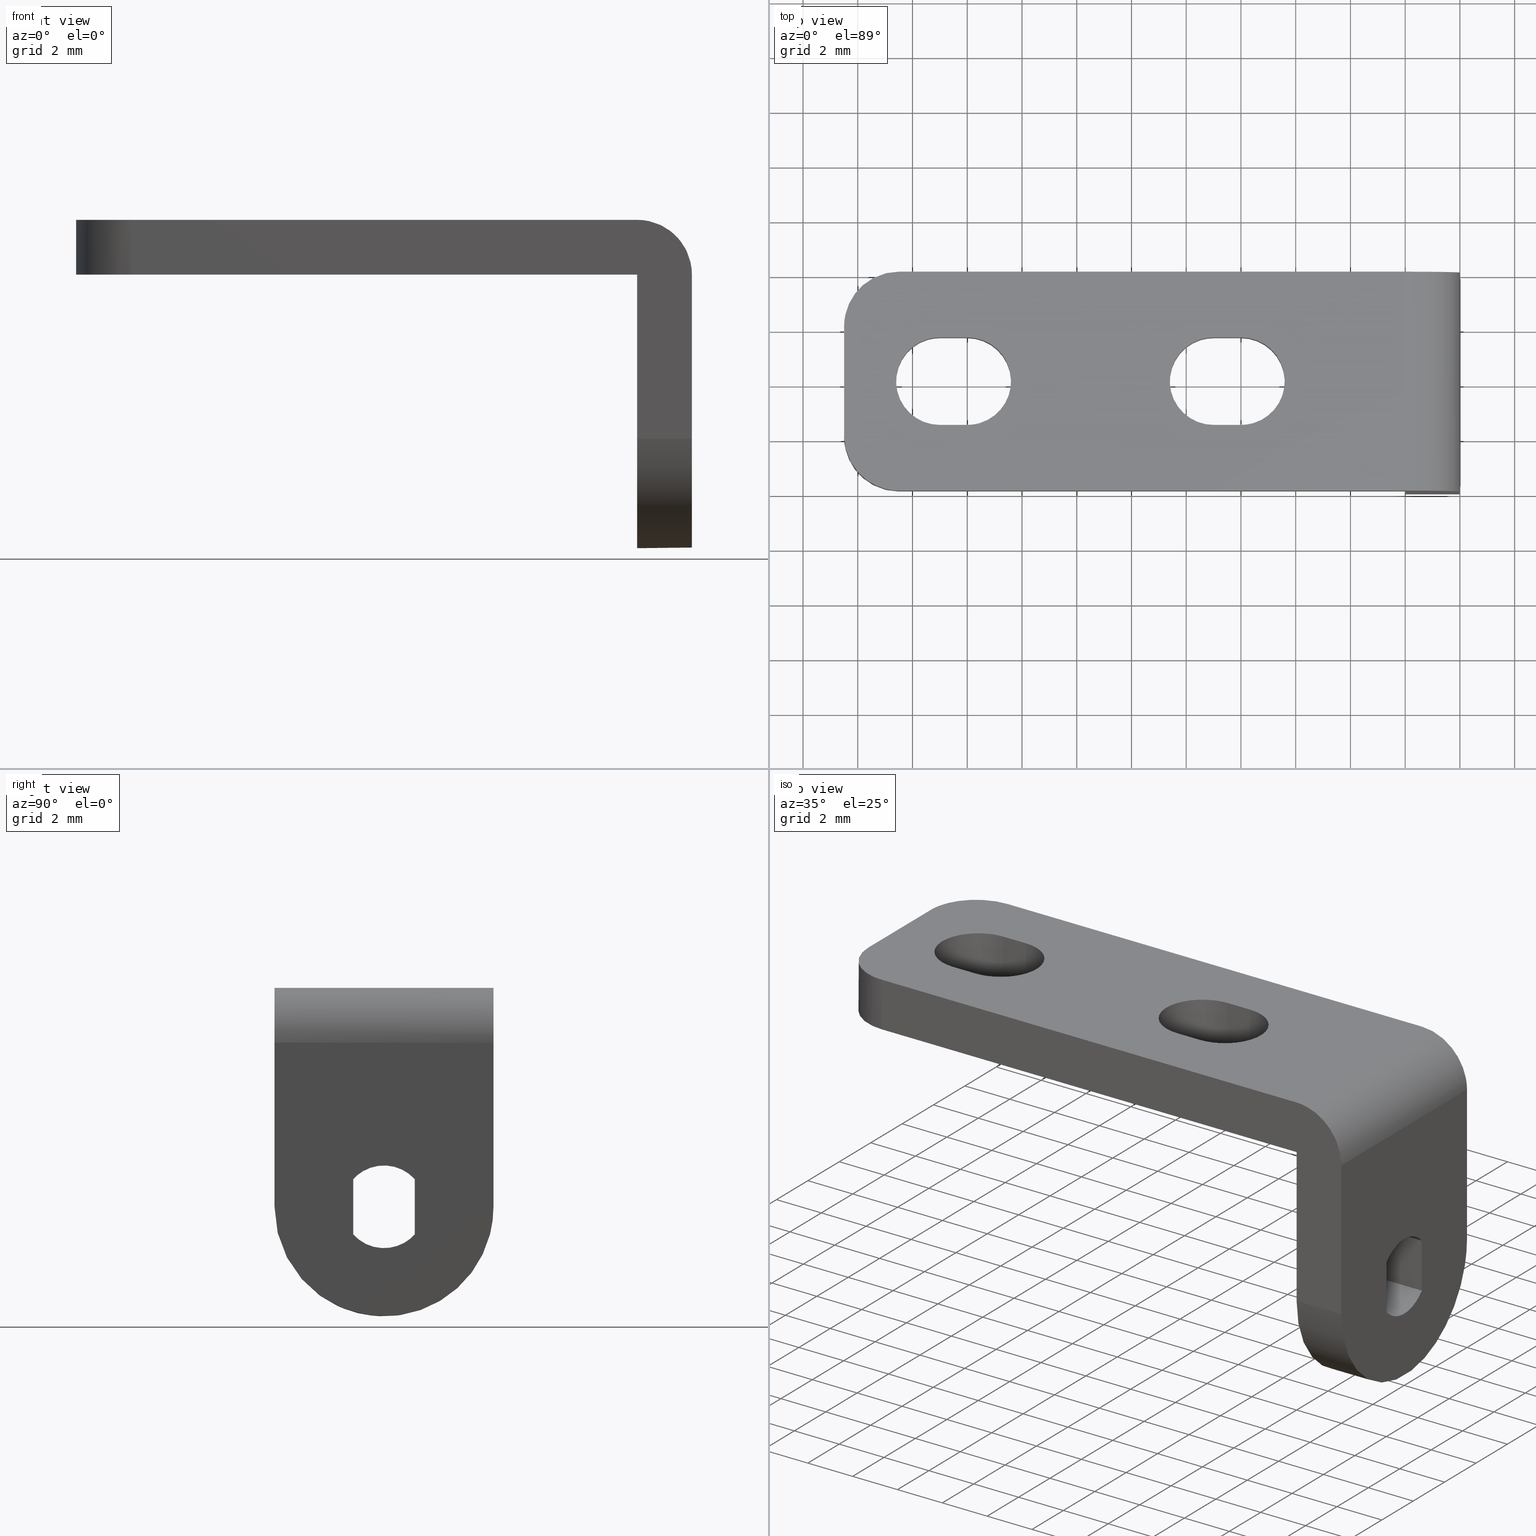
[diagram: canonical four-view strip — front | top / right | iso, engineering-drawing reading convention]
A machine part, canonical four-view strip (front | top / right | iso — engineering-drawing reading convention). The complete STEP part file that produces these views, byte-faithful:
ISO-10303-21;
HEADER;
/****************************************************************
 * Generated by software with PDE/Lib inside                    *
 * PDElib Version v5.1, created Sun 05/01/2005                  *
 * International Technegroup Inc. (www.iti-oh.com)              *
 ****************************************************************/
FILE_DESCRIPTION((''),'2;1');
FILE_NAME('','2013-07-16T09:49:29',(''),(''),'','CADfix','');
FILE_SCHEMA(('AUTOMOTIVE_DESIGN { 1 0 10303 214 1 1 1 1 }'));
ENDSEC;
DATA;
#5=CARTESIAN_POINT('',(0.050000000000000,-1.150980213893609,-0.977417284083630));
#6=CARTESIAN_POINT('',(-2.051250000000000,-1.150980213893609,-0.977417284083630));
#7=CARTESIAN_POINT('',(0.050000000000000,0.034721765176894,-2.373667933328211));
#8=CARTESIAN_POINT('',(-2.051250000000001,0.034721765176894,-2.373667933328211));
#9=CARTESIAN_POINT('',(0.050000000000000,1.179076753939400,-0.943333455528705));
#10=CARTESIAN_POINT('',(-2.051250000000000,1.179076753939400,-0.943333455528705));
#18=(BOUNDED_SURFACE()B_SPLINE_SURFACE(1,2,((#5,#7,#9),(#6,#8,#10)),.UNSPECIFIED.,.F.,.F.,.U.)B_SPLINE_SURFACE_WITH_KNOTS((2,2),(3,3),(0.0,2.101250000000000),(0.0,2.848648937378175),.UNSPECIFIED.)GEOMETRIC_REPRESENTATION_ITEM()RATIONAL_B_SPLINE_SURFACE(((1.0,0.636078220277764,1.0),(1.0,0.636078220277764,1.0)))REPRESENTATION_ITEM('')SURFACE());
#19=CARTESIAN_POINT('',(-2.0,-1.125000000000000,-1.007211497154396));
#20=VERTEX_POINT('',#19);
#21=CARTESIAN_POINT('',(-2.0,1.125000000000000,-1.007211497154394));
#22=VERTEX_POINT('',#21);
#23=CARTESIAN_POINT('',(-2.0,-1.125000000000000,-1.007211497154396));
#24=CARTESIAN_POINT('',(-1.999999999999995,-1.054458498273913,-1.086028728509245));
#25=CARTESIAN_POINT('',(-2.000000000000009,-0.906571749790443,-1.219810732984655));
#26=CARTESIAN_POINT('',(-1.999999999999995,-0.650104550909330,-1.373032470263705));
#27=CARTESIAN_POINT('',(-2.000000000000002,-0.369092621550394,-1.474997425281579));
#28=CARTESIAN_POINT('',(-2.000000000000016,-0.079654564803783,-1.517097273045653));
#29=CARTESIAN_POINT('',(-1.999999999999993,0.218606015017575,-1.503381004809239));
#30=CARTESIAN_POINT('',(-1.999999999999989,0.477100424217575,-1.441101633173067));
#31=CARTESIAN_POINT('',(-2.000000000000026,0.719860443600865,-1.334507545746368));
#32=CARTESIAN_POINT('',(-1.999999999999986,0.931943242133611,-1.198163352835112));
#33=CARTESIAN_POINT('',(-2.000000000000004,1.063274082685148,-1.076171822266437));
#34=CARTESIAN_POINT('',(-2.0,1.125000000000000,-1.007211497154394));
#35=B_SPLINE_CURVE_WITH_KNOTS('',3,(#23,#24,#25,#26,#27,#28,#29,#30,#31,#32,#33,#34),.UNSPECIFIED.,.F.,.U.,(4,1,1,1,1,1,1,1,1,4),(0.000000021252356,0.317321077084615,0.594980168034325,0.892474654479070,1.209802679016195,1.467612971836682,1.784940209736233,2.003101012342906,2.260931764289991,2.538583380167406),.UNSPECIFIED.);
#36=EDGE_CURVE('',#20,#22,#35,.T.);
#37=ORIENTED_EDGE('',*,*,#36,.F.);
#38=CARTESIAN_POINT('',(0.0,-1.125000000000000,-1.007211497154396));
#39=VERTEX_POINT('',#38);
#40=CARTESIAN_POINT('',(0.0,-1.125000000000000,-1.007211497154396));
#41=CARTESIAN_POINT('',(-2.0,-1.125000000000000,-1.007211497154396));
#42=QUASI_UNIFORM_CURVE('',1,(#40,#41),.UNSPECIFIED.,.F.,.U.);
#43=EDGE_CURVE('',#39,#20,#42,.T.);
#44=ORIENTED_EDGE('',*,*,#43,.F.);
#45=CARTESIAN_POINT('',(0.0,1.125000000000000,-1.007211497154394));
#46=VERTEX_POINT('',#45);
#47=CARTESIAN_POINT('',(0.0,-1.125000000000000,-1.007211497154396));
#48=CARTESIAN_POINT('',(0.0,-1.045645238729701,-1.095884023220042));
#49=CARTESIAN_POINT('',(0.0,-0.890792560039973,-1.232298635439841));
#50=CARTESIAN_POINT('',(0.0,-0.654548354545738,-1.367173621146567));
#51=CARTESIAN_POINT('',(0.0,-0.407263627448166,-1.462461806839617));
#52=CARTESIAN_POINT('',(0.0,-0.100270664438116,-1.521671297871029));
#53=CARTESIAN_POINT('',(0.0,0.226009997877097,-1.504519134658372));
#54=CARTESIAN_POINT('',(0.0,0.501373014302556,-1.430426744287053));
#55=CARTESIAN_POINT('',(0.0,0.719860573576183,-1.334508184639000));
#56=CARTESIAN_POINT('',(0.0,0.931943411093176,-1.198163887007338));
#57=CARTESIAN_POINT('',(0.0,1.063274071643109,-1.076171742007276));
#58=CARTESIAN_POINT('',(0.0,1.125000000000000,-1.007211497154394));
#59=B_SPLINE_CURVE_WITH_KNOTS('',3,(#47,#48,#49,#50,#51,#52,#53,#54,#55,#56,#57,#58),.UNSPECIFIED.,.F.,.U.,(4,1,1,1,1,1,1,1,1,4),(0.000000021252356,0.356983815308850,0.614813237037869,0.813141160937430,1.150296111727546,1.546943316012079,1.784940209736233,2.003101012342906,2.260931764289991,2.538583380167406),.UNSPECIFIED.);
#60=EDGE_CURVE('',#39,#46,#59,.T.);
#61=ORIENTED_EDGE('',*,*,#60,.T.);
#62=CARTESIAN_POINT('',(0.0,1.125000000000000,-1.007211497154394));
#63=CARTESIAN_POINT('',(-2.0,1.125000000000000,-1.007211497154394));
#64=QUASI_UNIFORM_CURVE('',1,(#62,#63),.UNSPECIFIED.,.F.,.U.);
#65=EDGE_CURVE('',#46,#22,#64,.T.);
#66=ORIENTED_EDGE('',*,*,#65,.T.);
#67=EDGE_LOOP('',(#37,#44,#61,#66));
#68=FACE_OUTER_BOUND('',#67,.T.);
#69=ADVANCED_FACE('',(#68),#18,.F.);
#70=CARTESIAN_POINT('',(-2.099899996123611,-1.125000000000000,-1.107831921815778));
#71=CARTESIAN_POINT('',(-2.099899996123611,-1.125000000000000,1.107831975846813));
#72=CARTESIAN_POINT('',(0.099900049767792,-1.125000000000000,-1.107831921815778));
#73=CARTESIAN_POINT('',(0.099900049767792,-1.125000000000000,1.107831975846813));
#74=B_SPLINE_SURFACE_WITH_KNOTS('',1,1,((#70,#72),(#71,#73)),.UNSPECIFIED.,.F.,.F.,.U.,(2,2),(2,2),(0.0,2.215663897662591),(0.0,2.199800045891403),.UNSPECIFIED.);
#75=CARTESIAN_POINT('',(-2.0,-1.125000000000000,1.007211497154396));
#76=VERTEX_POINT('',#75);
#77=CARTESIAN_POINT('',(-2.0,-1.125000000000000,1.007211497154396));
#78=CARTESIAN_POINT('',(-2.0,-1.125000000000000,-1.007211497154396));
#79=QUASI_UNIFORM_CURVE('',1,(#77,#78),.UNSPECIFIED.,.F.,.U.);
#80=EDGE_CURVE('',#76,#20,#79,.T.);
#81=ORIENTED_EDGE('',*,*,#80,.F.);
#82=CARTESIAN_POINT('',(0.0,-1.125000000000000,1.007211497154396));
#83=VERTEX_POINT('',#82);
#84=CARTESIAN_POINT('',(0.0,-1.125000000000000,1.007211497154396));
#85=CARTESIAN_POINT('',(-2.0,-1.125000000000000,1.007211497154396));
#86=QUASI_UNIFORM_CURVE('',1,(#84,#85),.UNSPECIFIED.,.F.,.U.);
#87=EDGE_CURVE('',#83,#76,#86,.T.);
#88=ORIENTED_EDGE('',*,*,#87,.F.);
#89=CARTESIAN_POINT('',(0.0,-1.125000000000000,1.007211497154396));
#90=CARTESIAN_POINT('',(0.0,-1.125000000000000,-1.007211497154396));
#91=QUASI_UNIFORM_CURVE('',1,(#89,#90),.UNSPECIFIED.,.F.,.U.);
#92=EDGE_CURVE('',#83,#39,#91,.T.);
#93=ORIENTED_EDGE('',*,*,#92,.T.);
#94=ORIENTED_EDGE('',*,*,#43,.T.);
#95=EDGE_LOOP('',(#81,#88,#93,#94));
#96=FACE_OUTER_BOUND('',#95,.T.);
#97=ADVANCED_FACE('',(#96),#74,.T.);
#98=CARTESIAN_POINT('',(0.050000000000000,1.150980213893609,0.977417284083630));
#99=CARTESIAN_POINT('',(-2.051250000000000,1.150980213893609,0.977417284083630));
#100=CARTESIAN_POINT('',(0.050000000000000,-0.034721765176894,2.373667933328211));
#101=CARTESIAN_POINT('',(-2.051250000000001,-0.034721765176894,2.373667933328211));
#102=CARTESIAN_POINT('',(0.050000000000000,-1.179076753939400,0.943333455528705));
#103=CARTESIAN_POINT('',(-2.051250000000000,-1.179076753939400,0.943333455528705));
#111=(BOUNDED_SURFACE()B_SPLINE_SURFACE(1,2,((#98,#100,#102),(#99,#101,#103)),.UNSPECIFIED.,.F.,.F.,.U.)B_SPLINE_SURFACE_WITH_KNOTS((2,2),(3,3),(0.0,2.101250000000000),(0.0,2.848648937378175),.UNSPECIFIED.)GEOMETRIC_REPRESENTATION_ITEM()RATIONAL_B_SPLINE_SURFACE(((1.0,0.636078220277764,1.0),(1.0,0.636078220277764,1.0)))REPRESENTATION_ITEM('')SURFACE());
#112=CARTESIAN_POINT('',(-2.0,1.125000000000000,1.007211497154396));
#113=VERTEX_POINT('',#112);
#114=CARTESIAN_POINT('',(-2.0,1.125000000000000,1.007211497154396));
#115=CARTESIAN_POINT('',(-1.999999999999999,1.054458762197572,1.086028210558191));
#116=CARTESIAN_POINT('',(-1.999999999999998,0.916429453312297,1.210891965597650));
#117=CARTESIAN_POINT('',(-2.000000000000004,0.701812052061926,1.342952749639790));
#118=CARTESIAN_POINT('',(-1.999999999999997,0.494970128216519,1.432155011110402));
#119=CARTESIAN_POINT('',(-2.000000000000004,0.258027295814461,1.495877439069008));
#120=CARTESIAN_POINT('',(-2.000000000000006,0.019755509462781,1.516266014524935));
#121=CARTESIAN_POINT('',(-1.999999999999982,-0.251058283222351,1.496676262277557));
#122=CARTESIAN_POINT('',(-2.000000000000027,-0.502867092721786,1.434257938895680));
#123=CARTESIAN_POINT('',(-1.999999999999975,-0.827046037347030,1.281651665574566));
#124=CARTESIAN_POINT('',(-2.000000000000010,-1.019225973146244,1.125487034870840));
#125=CARTESIAN_POINT('',(-2.0,-1.125000000000000,1.007211497154396));
#126=B_SPLINE_CURVE_WITH_KNOTS('',3,(#114,#115,#116,#117,#118,#119,#120,#121,#122,#123,#124,#125),.UNSPECIFIED.,.F.,.U.,(4,1,1,1,1,1,1,1,1,4),(0.000000021252095,0.317321077084407,0.555313923915336,0.753643760617509,0.991639863852368,1.289119027640193,1.467612971836608,1.804774067958977,2.062601643037822,2.538583380167404),.UNSPECIFIED.);
#127=EDGE_CURVE('',#113,#76,#126,.T.);
#128=ORIENTED_EDGE('',*,*,#127,.F.);
#129=CARTESIAN_POINT('',(0.0,1.125000000000000,1.007211497154396));
#130=VERTEX_POINT('',#129);
#131=CARTESIAN_POINT('',(0.0,1.125000000000000,1.007211497154396));
#132=CARTESIAN_POINT('',(-2.0,1.125000000000000,1.007211497154396));
#133=QUASI_UNIFORM_CURVE('',1,(#131,#132),.UNSPECIFIED.,.F.,.U.);
#134=EDGE_CURVE('',#130,#113,#133,.T.);
#135=ORIENTED_EDGE('',*,*,#134,.F.);
#136=CARTESIAN_POINT('',(0.0,1.125000000000000,1.007211497154396));
#137=CARTESIAN_POINT('',(0.0,1.076495969043248,1.061389453232287));
#138=CARTESIAN_POINT('',(0.0,0.952582644123064,1.181156429498540));
#139=CARTESIAN_POINT('',(0.0,0.727429469693175,1.334407168962392));
#140=CARTESIAN_POINT('',(0.0,0.421574581868040,1.463960861275891));
#141=CARTESIAN_POINT('',(0.0,0.079883444253307,1.522882716925551));
#142=CARTESIAN_POINT('',(0.0,-0.218682034390215,1.501244442419622));
#143=CARTESIAN_POINT('',(0.0,-0.476113844754126,1.439219859325162));
#144=CARTESIAN_POINT('',(0.0,-0.697539165492201,1.348867513452108));
#145=CARTESIAN_POINT('',(0.0,-0.931943746037599,1.198163757231606));
#146=CARTESIAN_POINT('',(0.0,-1.063273721978876,1.076171290451923));
#147=CARTESIAN_POINT('',(0.0,-1.125000000000000,1.007211497154396));
#148=B_SPLINE_CURVE_WITH_KNOTS('',3,(#136,#137,#138,#139,#140,#141,#142,#143,#144,#145,#146,#147),.UNSPECIFIED.,.F.,.U.,(4,1,1,1,1,1,1,1,1,4),(0.000000021252095,0.218156761067364,0.515649829696997,0.813141160937296,1.209802679016097,1.546943316012010,1.705610432851920,2.003101012342865,2.260931764289972,2.538583380167404),.UNSPECIFIED.);
#149=EDGE_CURVE('',#130,#83,#148,.T.);
#150=ORIENTED_EDGE('',*,*,#149,.T.);
#151=ORIENTED_EDGE('',*,*,#87,.T.);
#152=EDGE_LOOP('',(#128,#135,#150,#151));
#153=FACE_OUTER_BOUND('',#152,.T.);
#154=ADVANCED_FACE('',(#153),#111,.F.);
#155=CARTESIAN_POINT('',(-2.099899996123612,1.125000000000000,1.107831921815778));
#156=CARTESIAN_POINT('',(-2.099899996123612,1.125000000000000,-1.107831975846811));
#157=CARTESIAN_POINT('',(0.099900049767792,1.125000000000000,1.107831921815778));
#158=CARTESIAN_POINT('',(0.099900049767792,1.125000000000000,-1.107831975846811));
#159=B_SPLINE_SURFACE_WITH_KNOTS('',1,1,((#155,#157),(#156,#158)),.UNSPECIFIED.,.F.,.F.,.U.,(2,2),(2,2),(0.0,2.215663897662588),(0.0,2.199800045891404),.UNSPECIFIED.);
#160=CARTESIAN_POINT('',(-2.0,1.125000000000000,-1.007211497154394));
#161=CARTESIAN_POINT('',(-2.0,1.125000000000000,1.007211497154396));
#162=QUASI_UNIFORM_CURVE('',1,(#160,#161),.UNSPECIFIED.,.F.,.U.);
#163=EDGE_CURVE('',#22,#113,#162,.T.);
#164=ORIENTED_EDGE('',*,*,#163,.F.);
#165=ORIENTED_EDGE('',*,*,#65,.F.);
#166=CARTESIAN_POINT('',(0.0,1.125000000000000,-1.007211497154394));
#167=CARTESIAN_POINT('',(0.0,1.125000000000000,1.007211497154396));
#168=QUASI_UNIFORM_CURVE('',1,(#166,#167),.UNSPECIFIED.,.F.,.U.);
#169=EDGE_CURVE('',#46,#130,#168,.T.);
#170=ORIENTED_EDGE('',*,*,#169,.T.);
#171=ORIENTED_EDGE('',*,*,#134,.T.);
#172=EDGE_LOOP('',(#164,#165,#170,#171));
#173=FACE_OUTER_BOUND('',#172,.T.);
#174=ADVANCED_FACE('',(#173),#159,.T.);
#175=CARTESIAN_POINT('',(-2.0,-4.399599984494326,6.499508380218263));
#176=CARTESIAN_POINT('',(-2.0,4.399600199071164,6.499508380218263));
#177=CARTESIAN_POINT('',(-2.0,-4.399599984494326,-4.499500648439121));
#178=CARTESIAN_POINT('',(-2.0,4.399600199071164,-4.499500648439121));
#179=B_SPLINE_SURFACE_WITH_KNOTS('',1,1,((#175,#177),(#176,#178)),.UNSPECIFIED.,.F.,.F.,.U.,(2,2),(2,2),(0.0,8.799200183565489),(0.0,10.999009028657380),.UNSPECIFIED.);
#180=CARTESIAN_POINT('',(-2.0,3.999999999999940,0.000000698131700));
#181=VERTEX_POINT('',#180);
#182=CARTESIAN_POINT('',(-2.0,4.0,6.000008000000210));
#183=VERTEX_POINT('',#182);
#184=CARTESIAN_POINT('',(-2.0,3.999999999999940,0.000000698131700));
#185=CARTESIAN_POINT('',(-2.0,4.0,6.000008000000210));
#186=QUASI_UNIFORM_CURVE('',1,(#184,#185),.UNSPECIFIED.,.F.,.U.);
#187=EDGE_CURVE('',#181,#183,#186,.T.);
#188=ORIENTED_EDGE('',*,*,#187,.F.);
#189=CARTESIAN_POINT('',(-2.0,-3.999999999999885,-2.449213E-016));
#190=VERTEX_POINT('',#189);
#191=CARTESIAN_POINT('',(-2.0,-3.999999999999885,-2.449213E-016));
#192=CARTESIAN_POINT('',(-2.000000000000002,-4.000054820273503,-0.294528697669436));
#193=CARTESIAN_POINT('',(-1.999999999999997,-3.940087908877969,-0.834463830602775));
#194=CARTESIAN_POINT('',(-2.000000000000009,-3.720037957986159,-1.514537858893509));
#195=CARTESIAN_POINT('',(-1.999999999999960,-3.464132106644943,-2.019023679253217));
#196=CARTESIAN_POINT('',(-2.000000000000020,-3.168247200904762,-2.461866130244077));
#197=CARTESIAN_POINT('',(-1.999999999999985,-2.836610672779317,-2.836915638123589));
#198=CARTESIAN_POINT('',(-2.000000000000023,-2.422086121509341,-3.196705231388449));
#199=CARTESIAN_POINT('',(-1.999999999999953,-1.944632128753551,-3.515748645137961));
#200=CARTESIAN_POINT('',(-2.000000000000013,-1.428652358590203,-3.750175550014358));
#201=CARTESIAN_POINT('',(-2.000000000000036,-0.926061342890244,-3.899248517612289));
#202=CARTESIAN_POINT('',(-1.999999999999950,-0.426265298816485,-3.990730900704372));
#203=CARTESIAN_POINT('',(-2.000000000000060,0.229964258619734,-4.016954725121442));
#204=CARTESIAN_POINT('',(-1.999999999999969,0.897176979092106,-3.917977598478563));
#205=CARTESIAN_POINT('',(-2.000000000000012,1.520556628081535,-3.714126542087710));
#206=CARTESIAN_POINT('',(-1.999999999999995,1.999136146657041,-3.478726857426481));
#207=CARTESIAN_POINT('',(-2.000000000000001,2.461537878592850,-3.167704515486180));
#208=CARTESIAN_POINT('',(-2.0,2.824120569598528,-2.847093247575191));
#209=CARTESIAN_POINT('',(-2.0,3.160528731872900,-2.466642192713344));
#210=CARTESIAN_POINT('',(-2.000000000000006,3.403905666833889,-2.116528134382790));
#211=CARTESIAN_POINT('',(-1.999999999999965,3.634266829761743,-1.691842397540590));
#212=CARTESIAN_POINT('',(-2.000000000000105,3.815327884560553,-1.243095360035882));
#213=CARTESIAN_POINT('',(-1.999999999999746,3.962764862235379,-0.654487913872275));
#214=CARTESIAN_POINT('',(-2.000000000000370,4.000023397858799,-0.237253504403810));
#215=CARTESIAN_POINT('',(-2.0,3.999999999999940,0.000000698131700));
#216=B_SPLINE_CURVE_WITH_KNOTS('',3,(#191,#192,#193,#194,#195,#196,#197,#198,#199,#200,#201,#202,#203,#204,#205,#206,#207,#208,#209,#210,#211,#212,#213,#214,#215),.UNSPECIFIED.,.F.,.U.,(4,1,1,1,1,1,1,1,1,1,1,1,1,1,1,1,1,1,1,1,1,1,4),(0.000000034913221,0.883572076087649,1.619883735277144,2.135305120002263,2.577092520897409,3.215230919459122,3.632482014088840,4.221516339006417,4.933286803160291,5.325988793622190,5.792318006482378,6.455002020937245,7.289491901418334,7.804907263553440,8.418496800233399,8.884824342451179,9.473876836323283,9.866580385363349,10.406542240729239,10.750155645124350,11.314662507973919,11.854631317665630,12.566391025485240),.UNSPECIFIED.);
#217=EDGE_CURVE('',#190,#181,#216,.T.);
#218=ORIENTED_EDGE('',*,*,#217,.F.);
#219=CARTESIAN_POINT('',(-2.0,-3.999999999999885,6.000008000000210));
#220=VERTEX_POINT('',#219);
#221=CARTESIAN_POINT('',(-2.0,-3.999999999999885,6.000008000000210));
#222=CARTESIAN_POINT('',(-2.0,-3.999999999999885,-2.449213E-016));
#223=QUASI_UNIFORM_CURVE('',1,(#221,#222),.UNSPECIFIED.,.F.,.U.);
#224=EDGE_CURVE('',#220,#190,#223,.T.);
#225=ORIENTED_EDGE('',*,*,#224,.F.);
#226=CARTESIAN_POINT('',(-2.0,4.0,6.000008000000210));
#227=CARTESIAN_POINT('',(-2.0,-3.999999999999885,6.000008000000210));
#228=QUASI_UNIFORM_CURVE('',1,(#226,#227),.UNSPECIFIED.,.F.,.U.);
#229=EDGE_CURVE('',#183,#220,#228,.T.);
#230=ORIENTED_EDGE('',*,*,#229,.F.);
#231=EDGE_LOOP('',(#188,#218,#225,#230));
#232=FACE_OUTER_BOUND('',#231,.T.);
#233=ORIENTED_EDGE('',*,*,#163,.T.);
#234=ORIENTED_EDGE('',*,*,#127,.T.);
#235=ORIENTED_EDGE('',*,*,#80,.T.);
#236=ORIENTED_EDGE('',*,*,#36,.T.);
#237=EDGE_LOOP('',(#233,#234,#235,#236));
#238=FACE_BOUND('',#237,.T.);
#239=ADVANCED_FACE('',(#232,#238),#179,.T.);
#240=CARTESIAN_POINT('',(0.0,-4.399599984494326,6.499508380218263));
#241=CARTESIAN_POINT('',(0.0,4.399600199071164,6.499508380218263));
#242=CARTESIAN_POINT('',(0.0,-4.399599984494326,-4.499500648439121));
#243=CARTESIAN_POINT('',(0.0,4.399600199071164,-4.499500648439121));
#244=B_SPLINE_SURFACE_WITH_KNOTS('',1,1,((#240,#242),(#241,#243)),.UNSPECIFIED.,.F.,.F.,.U.,(2,2),(2,2),(0.0,8.799200183565489),(0.0,10.999009028657380),.UNSPECIFIED.);
#245=CARTESIAN_POINT('',(0.0,3.999999999999940,0.000000698131700));
#246=VERTEX_POINT('',#245);
#247=CARTESIAN_POINT('',(0.0,4.0,6.000008000000210));
#248=VERTEX_POINT('',#247);
#249=CARTESIAN_POINT('',(0.0,3.999999999999940,0.000000698131700));
#250=CARTESIAN_POINT('',(0.0,4.0,6.000008000000210));
#251=QUASI_UNIFORM_CURVE('',1,(#249,#250),.UNSPECIFIED.,.F.,.U.);
#252=EDGE_CURVE('',#246,#248,#251,.T.);
#253=ORIENTED_EDGE('',*,*,#252,.T.);
#254=CARTESIAN_POINT('',(0.0,-3.999999999999885,6.000008000000210));
#255=VERTEX_POINT('',#254);
#256=CARTESIAN_POINT('',(0.0,4.0,6.000008000000210));
#257=CARTESIAN_POINT('',(0.0,-3.999999999999885,6.000008000000210));
#258=QUASI_UNIFORM_CURVE('',1,(#256,#257),.UNSPECIFIED.,.F.,.U.);
#259=EDGE_CURVE('',#248,#255,#258,.T.);
#260=ORIENTED_EDGE('',*,*,#259,.T.);
#261=CARTESIAN_POINT('',(0.0,-3.999999999999885,-2.449213E-016));
#262=VERTEX_POINT('',#261);
#263=CARTESIAN_POINT('',(0.0,-3.999999999999885,6.000008000000210));
#264=CARTESIAN_POINT('',(0.0,-3.999999999999885,-2.449213E-016));
#265=QUASI_UNIFORM_CURVE('',1,(#263,#264),.UNSPECIFIED.,.F.,.U.);
#266=EDGE_CURVE('',#255,#262,#265,.T.);
#267=ORIENTED_EDGE('',*,*,#266,.T.);
#268=CARTESIAN_POINT('',(0.0,-3.999999999999885,-2.449213E-016));
#269=CARTESIAN_POINT('',(0.0,-4.000060343357931,-0.294529724096144));
#270=CARTESIAN_POINT('',(0.0,-3.947336608570312,-0.769011183152444));
#271=CARTESIAN_POINT('',(0.0,-3.756100488018047,-1.413636232546516));
#272=CARTESIAN_POINT('',(0.0,-3.534049368336250,-1.898426549758325));
#273=CARTESIAN_POINT('',(0.0,-3.272253988920117,-2.314650964860801));
#274=CARTESIAN_POINT('',(0.0,-2.996883505533166,-2.660884984748402));
#275=CARTESIAN_POINT('',(0.0,-2.639884037630973,-3.022308632981548));
#276=CARTESIAN_POINT('',(0.0,-2.151047183720705,-3.396639152069455));
#277=CARTESIAN_POINT('',(0.0,-1.560326812276597,-3.703117609810095));
#278=CARTESIAN_POINT('',(0.0,-0.990554560180545,-3.887454643922236));
#279=CARTESIAN_POINT('',(0.0,-0.418202707493278,-3.992206017026926));
#280=CARTESIAN_POINT('',(0.0,0.238270958088430,-4.016422840813642));
#281=CARTESIAN_POINT('',(0.0,0.904969668180547,-3.915423306611527));
#282=CARTESIAN_POINT('',(0.0,1.520554823971316,-3.714125185857975));
#283=CARTESIAN_POINT('',(0.0,2.072772481960655,-3.442523185952398));
#284=CARTESIAN_POINT('',(0.0,2.633193033353521,-3.040082648142345));
#285=CARTESIAN_POINT('',(0.0,3.095017043942915,-2.560916185527439));
#286=CARTESIAN_POINT('',(0.0,3.403903804485637,-2.116526580408693));
#287=CARTESIAN_POINT('',(0.0,3.634266785269257,-1.691842348127715));
#288=CARTESIAN_POINT('',(0.0,3.815327896753934,-1.243095373576178));
#289=CARTESIAN_POINT('',(0.0,3.962764860714477,-0.654487912182828));
#290=CARTESIAN_POINT('',(0.0,4.000023397863825,-0.237253504409639));
#291=CARTESIAN_POINT('',(0.0,3.999999999999940,0.000000698131700));
#292=B_SPLINE_CURVE_WITH_KNOTS('',3,(#268,#269,#270,#271,#272,#273,#274,#275,#276,#277,#278,#279,#280,#281,#282,#283,#284,#285,#286,#287,#288,#289,#290,#291),.UNSPECIFIED.,.F.,.U.,(4,1,1,1,1,1,1,1,1,1,1,1,1,1,1,1,1,1,1,1,1,4),(0.000000034913221,0.883572076087649,1.423532393323802,2.012586189332776,2.478919668675106,2.896161786217231,3.337949072462257,4.000630920995793,4.736935674539793,5.325988793622190,5.792318006482378,6.479546852307418,7.289491901418334,7.804907263553440,8.418496800233399,9.130260252637937,9.866580385363349,10.406542240729239,10.750155645124350,11.314662507973919,11.854631317665630,12.566391025485240),.UNSPECIFIED.);
#293=EDGE_CURVE('',#262,#246,#292,.T.);
#294=ORIENTED_EDGE('',*,*,#293,.T.);
#295=EDGE_LOOP('',(#253,#260,#267,#294));
#296=FACE_OUTER_BOUND('',#295,.T.);
#297=ORIENTED_EDGE('',*,*,#149,.F.);
#298=ORIENTED_EDGE('',*,*,#169,.F.);
#299=ORIENTED_EDGE('',*,*,#60,.F.);
#300=ORIENTED_EDGE('',*,*,#92,.F.);
#301=EDGE_LOOP('',(#297,#298,#299,#300));
#302=FACE_BOUND('',#301,.T.);
#303=ADVANCED_FACE('',(#296,#302),#244,.F.);
#304=CARTESIAN_POINT('',(-23.523974960267019,-4.399599984494326,6.000008000000210));
#305=CARTESIAN_POINT('',(-0.976024489880131,-4.399599984494326,6.000008000000210));
#306=CARTESIAN_POINT('',(-23.523974960267019,4.399600199071164,6.000008000000210));
#307=CARTESIAN_POINT('',(-0.976024489880131,4.399600199071164,6.000008000000210));
#308=B_SPLINE_SURFACE_WITH_KNOTS('',1,1,((#304,#306),(#305,#307)),.UNSPECIFIED.,.F.,.F.,.U.,(2,2),(2,2),(0.0,22.547950470386890),(0.0,8.799200183565489),.UNSPECIFIED.);
#309=CARTESIAN_POINT('',(-20.500000000000000,-3.999999999999885,6.000008000000210));
#310=VERTEX_POINT('',#309);
#311=CARTESIAN_POINT('',(-20.500000000000000,-3.999999999999885,6.000008000000210));
#312=CARTESIAN_POINT('',(-2.0,-3.999999999999885,6.000008000000210));
#313=QUASI_UNIFORM_CURVE('',1,(#311,#312),.UNSPECIFIED.,.F.,.U.);
#314=EDGE_CURVE('',#310,#220,#313,.T.);
#315=ORIENTED_EDGE('',*,*,#314,.F.);
#316=CARTESIAN_POINT('',(-22.500000000000000,-1.999999999999885,6.000008000000210));
#317=VERTEX_POINT('',#316);
#318=CARTESIAN_POINT('',(-20.500000000000000,-3.999999999999885,6.000008000000210));
#319=CARTESIAN_POINT('',(-22.500000000000000,-3.999999999999886,6.000008000000210));
#320=CARTESIAN_POINT('',(-22.500000000000000,-1.999999999999885,6.000008000000210));
#328=(BOUNDED_CURVE()B_SPLINE_CURVE(2,(#318,#319,#320),.UNSPECIFIED.,.F.,.U.)CURVE()GEOMETRIC_REPRESENTATION_ITEM()QUASI_UNIFORM_CURVE()RATIONAL_B_SPLINE_CURVE((1.0,0.707106781186548,1.0))REPRESENTATION_ITEM(''));
#329=EDGE_CURVE('',#310,#317,#328,.T.);
#330=ORIENTED_EDGE('',*,*,#329,.T.);
#331=CARTESIAN_POINT('',(-22.500000000000000,2.0,6.000008000000210));
#332=VERTEX_POINT('',#331);
#333=CARTESIAN_POINT('',(-22.500000000000000,2.0,6.000008000000210));
#334=CARTESIAN_POINT('',(-22.500000000000000,-1.999999999999885,6.000008000000210));
#335=QUASI_UNIFORM_CURVE('',1,(#333,#334),.UNSPECIFIED.,.F.,.U.);
#336=EDGE_CURVE('',#332,#317,#335,.T.);
#337=ORIENTED_EDGE('',*,*,#336,.F.);
#338=CARTESIAN_POINT('',(-20.500000000000000,4.0,6.000008000000210));
#339=VERTEX_POINT('',#338);
#340=CARTESIAN_POINT('',(-22.500000000000000,2.0,6.000008000000210));
#341=CARTESIAN_POINT('',(-22.500000000000000,4.000000000000000,6.000008000000210));
#342=CARTESIAN_POINT('',(-20.500000000000000,4.0,6.000008000000210));
#350=(BOUNDED_CURVE()B_SPLINE_CURVE(2,(#340,#341,#342),.UNSPECIFIED.,.F.,.U.)CURVE()GEOMETRIC_REPRESENTATION_ITEM()QUASI_UNIFORM_CURVE()RATIONAL_B_SPLINE_CURVE((1.0,0.707106781186548,1.0))REPRESENTATION_ITEM(''));
#351=EDGE_CURVE('',#332,#339,#350,.T.);
#352=ORIENTED_EDGE('',*,*,#351,.T.);
#353=CARTESIAN_POINT('',(-20.500000000000000,4.0,6.000008000000210));
#354=CARTESIAN_POINT('',(-2.0,4.0,6.000008000000210));
#355=QUASI_UNIFORM_CURVE('',1,(#353,#354),.UNSPECIFIED.,.F.,.U.);
#356=EDGE_CURVE('',#339,#183,#355,.T.);
#357=ORIENTED_EDGE('',*,*,#356,.T.);
#358=ORIENTED_EDGE('',*,*,#229,.T.);
#359=EDGE_LOOP('',(#315,#330,#337,#352,#357,#358));
#360=FACE_OUTER_BOUND('',#359,.T.);
#361=CARTESIAN_POINT('',(-8.0,1.600000000000000,6.000008000000221));
#362=VERTEX_POINT('',#361);
#363=CARTESIAN_POINT('',(-9.0,1.600000000000000,6.000008000000221));
#364=VERTEX_POINT('',#363);
#365=CARTESIAN_POINT('',(-8.0,1.600000000000000,6.000008000000221));
#366=CARTESIAN_POINT('',(-9.0,1.600000000000000,6.000008000000221));
#367=QUASI_UNIFORM_CURVE('',1,(#365,#366),.UNSPECIFIED.,.F.,.U.);
#368=EDGE_CURVE('',#362,#364,#367,.T.);
#369=ORIENTED_EDGE('',*,*,#368,.T.);
#370=CARTESIAN_POINT('',(-9.0,-1.600000000000000,6.000008000000221));
#371=VERTEX_POINT('',#370);
#372=CARTESIAN_POINT('',(-9.0,-1.600000000000000,6.000008000000221));
#373=CARTESIAN_POINT('',(-9.170182138170501,-1.600101599195474,6.000008000000234));
#374=CARTESIAN_POINT('',(-9.399190220738788,-1.563107800211460,6.000008000000218));
#375=CARTESIAN_POINT('',(-9.704246662306396,-1.443253969862106,6.000008000000227));
#376=CARTESIAN_POINT('',(-9.915110729020949,-1.322096947846609,6.000008000000196));
#377=CARTESIAN_POINT('',(-10.117102405665401,-1.154231710704524,6.000008000000264));
#378=CARTESIAN_POINT('',(-10.290998783811370,-0.957577570410777,6.000008000000204));
#379=CARTESIAN_POINT('',(-10.426806143840700,-0.740170469314043,6.000008000000238));
#380=CARTESIAN_POINT('',(-10.532287156147140,-0.485511680483090,6.000008000000244));
#381=CARTESIAN_POINT('',(-10.597389126883980,-0.203738110623500,6.000008000000169));
#382=CARTESIAN_POINT('',(-10.607493260512420,0.125137273961645,6.000008000000322));
#383=CARTESIAN_POINT('',(-10.550837052647640,0.429394855954933,6.000008000000055));
#384=CARTESIAN_POINT('',(-10.451620973047810,0.686560074258270,6.000008000000451));
#385=CARTESIAN_POINT('',(-10.325469078350000,0.909260882214941,6.000008000000055));
#386=CARTESIAN_POINT('',(-10.143384902701920,1.133951524167186,6.000008000000458));
#387=CARTESIAN_POINT('',(-9.920686832260266,1.319006628271356,6.000008000000112));
#388=CARTESIAN_POINT('',(-9.692267515582968,1.448379303909509,6.000008000000243));
#389=CARTESIAN_POINT('',(-9.399200749668951,1.563542684397505,6.000008000000218));
#390=CARTESIAN_POINT('',(-9.163632769627855,1.600076532330846,6.000008000000223));
#391=CARTESIAN_POINT('',(-9.0,1.600000000000000,6.000008000000221));
#392=B_SPLINE_CURVE_WITH_KNOTS('',3,(#372,#373,#374,#375,#376,#377,#378,#379,#380,#381,#382,#383,#384,#385,#386,#387,#388,#389,#390,#391),.UNSPECIFIED.,.F.,.U.,(4,1,1,1,1,1,1,1,1,1,1,1,1,1,1,1,1,4),(0.000000039346045,0.510500478942824,0.687218958563789,0.981753645992722,1.237010446389019,1.472634790920960,1.767161100479937,2.002786649222763,2.297316311428610,2.631089619977598,2.984525342914574,3.220144506303790,3.455771833735028,3.750299700033784,4.084101482301574,4.319720343875076,4.535712412753929,5.026579785222102),.UNSPECIFIED.);
#393=EDGE_CURVE('',#371,#364,#392,.T.);
#394=ORIENTED_EDGE('',*,*,#393,.F.);
#395=CARTESIAN_POINT('',(-8.0,-1.600000000000000,6.000008000000221));
#396=VERTEX_POINT('',#395);
#397=CARTESIAN_POINT('',(-9.0,-1.600000000000000,6.000008000000221));
#398=CARTESIAN_POINT('',(-8.0,-1.600000000000000,6.000008000000221));
#399=QUASI_UNIFORM_CURVE('',1,(#397,#398),.UNSPECIFIED.,.F.,.U.);
#400=EDGE_CURVE('',#371,#396,#399,.T.);
#401=ORIENTED_EDGE('',*,*,#400,.T.);
#402=CARTESIAN_POINT('',(-8.0,1.600000000000000,6.000008000000221));
#403=CARTESIAN_POINT('',(-7.862556058045578,1.600038093334496,6.000008000000223));
#404=CARTESIAN_POINT('',(-7.587686445406663,1.564368733130585,6.000008000000229));
#405=CARTESIAN_POINT('',(-7.214808275030460,1.412623632068268,6.000008000000197));
#406=CARTESIAN_POINT('',(-6.943669035918877,1.214054278271830,6.000008000000281));
#407=CARTESIAN_POINT('',(-6.745937973982563,1.003779369235412,6.000008000000198));
#408=CARTESIAN_POINT('',(-6.586115866119441,0.770861466362223,6.000008000000210));
#409=CARTESIAN_POINT('',(-6.458979385246904,0.474294257038368,6.000008000000287));
#410=CARTESIAN_POINT('',(-6.396785004499052,0.151192971904335,6.000008000000124));
#411=CARTESIAN_POINT('',(-6.398650997045169,-0.151139825396995,6.000008000000190));
#412=CARTESIAN_POINT('',(-6.458741075332070,-0.474058738438048,6.000008000000247));
#413=CARTESIAN_POINT('',(-6.581750331164044,-0.765966908327591,6.000008000000214));
#414=CARTESIAN_POINT('',(-6.742941049452401,-0.997775301598609,6.000008000000221));
#415=CARTESIAN_POINT('',(-6.898051877684877,-1.166817009770239,6.000008000000222));
#416=CARTESIAN_POINT('',(-7.110127203938927,-1.343100155849460,6.000008000000220));
#417=CARTESIAN_POINT('',(-7.366020294466217,-1.479869827346179,6.000008000000220));
#418=CARTESIAN_POINT('',(-7.679316157985189,-1.576982984408867,6.000008000000227));
#419=CARTESIAN_POINT('',(-7.875645868028447,-1.600030470729567,6.000008000000220));
#420=CARTESIAN_POINT('',(-8.0,-1.600000000000000,6.000008000000221));
#421=B_SPLINE_CURVE_WITH_KNOTS('',3,(#402,#403,#404,#405,#406,#407,#408,#409,#410,#411,#412,#413,#414,#415,#416,#417,#418,#419,#420),.UNSPECIFIED.,.F.,.U.,(4,1,1,1,1,1,1,1,1,1,1,1,1,1,1,1,4),(0.000000039350478,0.412323790205760,0.824670839630229,1.197739400269708,1.413726806090006,1.688618543447044,2.042059609893278,2.375854882467114,2.670367425189096,2.945249346333211,3.357597013553148,3.612853695360887,3.789570195877295,4.044826689623658,4.437536630948081,4.653525250983105,5.026579785222097),.UNSPECIFIED.);
#422=EDGE_CURVE('',#362,#396,#421,.T.);
#423=ORIENTED_EDGE('',*,*,#422,.F.);
#424=EDGE_LOOP('',(#369,#394,#401,#423));
#425=FACE_BOUND('',#424,.T.);
#426=CARTESIAN_POINT('',(-18.0,1.600000000000000,6.000008000000221));
#427=VERTEX_POINT('',#426);
#428=CARTESIAN_POINT('',(-19.0,1.600000000000000,6.000008000000221));
#429=VERTEX_POINT('',#428);
#430=CARTESIAN_POINT('',(-18.0,1.600000000000000,6.000008000000221));
#431=CARTESIAN_POINT('',(-19.0,1.600000000000000,6.000008000000221));
#432=QUASI_UNIFORM_CURVE('',1,(#430,#431),.UNSPECIFIED.,.F.,.U.);
#433=EDGE_CURVE('',#427,#429,#432,.T.);
#434=ORIENTED_EDGE('',*,*,#433,.T.);
#435=CARTESIAN_POINT('',(-19.0,-1.600000000000000,6.000008000000221));
#436=VERTEX_POINT('',#435);
#437=CARTESIAN_POINT('',(-19.0,-1.600000000000000,6.000008000000221));
#438=CARTESIAN_POINT('',(-19.078534544461501,-1.600002775676719,6.000008000000231));
#439=CARTESIAN_POINT('',(-19.248699697937280,-1.587450085403152,6.000008000000212));
#440=CARTESIAN_POINT('',(-19.529925045778771,-1.520679795281658,6.000008000000214));
#441=CARTESIAN_POINT('',(-19.835267147539490,-1.380844415620376,6.000008000000236));
#442=CARTESIAN_POINT('',(-20.127581041016612,-1.155597503790804,6.000008000000202));
#443=CARTESIAN_POINT('',(-20.339174475326381,-0.894502621797516,6.000008000000256));
#444=CARTESIAN_POINT('',(-20.464592773725940,-0.656295750379034,6.000008000000147));
#445=CARTESIAN_POINT('',(-20.543210221169598,-0.440759670029338,6.000008000000279));
#446=CARTESIAN_POINT('',(-20.593587734239950,-0.209827058926134,6.000008000000191));
#447=CARTESIAN_POINT('',(-20.605831645695162,0.039497122695810,6.000008000000108));
#448=CARTESIAN_POINT('',(-20.579876870129890,0.287411685298356,6.000008000000284));
#449=CARTESIAN_POINT('',(-20.525941131110571,0.497264816237285,6.000008000000291));
#450=CARTESIAN_POINT('',(-20.432038709473240,0.727978587679179,6.000008000000210));
#451=CARTESIAN_POINT('',(-20.303559867232991,0.942334631926666,6.000008000000076));
#452=CARTESIAN_POINT('',(-20.091930600654742,1.184674269240691,6.000008000000318));
#453=CARTESIAN_POINT('',(-19.824284385367729,1.388319724216415,6.000008000000180));
#454=CARTESIAN_POINT('',(-19.445013039632869,1.556437635676681,6.000008000000245));
#455=CARTESIAN_POINT('',(-19.163629787455189,1.600081165979080,6.000008000000210));
#456=CARTESIAN_POINT('',(-19.0,1.600000000000000,6.000008000000221));
#457=B_SPLINE_CURVE_WITH_KNOTS('',3,(#437,#438,#439,#440,#441,#442,#443,#444,#445,#446,#447,#448,#449,#450,#451,#452,#453,#454,#455,#456),.UNSPECIFIED.,.F.,.U.,(4,1,1,1,1,1,1,1,1,1,1,1,1,1,1,1,1,4),(0.000000039348809,0.235605083905378,0.510500478945247,0.863937674979766,1.237010446391084,1.610080332782273,1.865336532186004,2.042059609892417,2.297316311430135,2.572180831014178,2.788180544815536,3.043425924768190,3.220144506304180,3.534313878316162,3.789570195876859,4.182278249535497,4.535712412754139,5.026579785222101),.UNSPECIFIED.);
#458=EDGE_CURVE('',#436,#429,#457,.T.);
#459=ORIENTED_EDGE('',*,*,#458,.F.);
#460=CARTESIAN_POINT('',(-18.0,-1.600000000000000,6.000008000000221));
#461=VERTEX_POINT('',#460);
#462=CARTESIAN_POINT('',(-19.0,-1.600000000000000,6.000008000000221));
#463=CARTESIAN_POINT('',(-18.0,-1.600000000000000,6.000008000000221));
#464=QUASI_UNIFORM_CURVE('',1,(#462,#463),.UNSPECIFIED.,.F.,.U.);
#465=EDGE_CURVE('',#436,#461,#464,.T.);
#466=ORIENTED_EDGE('',*,*,#465,.T.);
#467=CARTESIAN_POINT('',(-18.0,1.600000000000000,6.000008000000221));
#468=CARTESIAN_POINT('',(-17.895283926906419,1.600012866359081,6.000008000000227));
#469=CARTESIAN_POINT('',(-17.685850736228669,1.579365271589486,6.000008000000213));
#470=CARTESIAN_POINT('',(-17.371173275850619,1.483934298413357,6.000008000000212));
#471=CARTESIAN_POINT('',(-17.088493662389951,1.328341524310031,6.000008000000262));
#472=CARTESIAN_POINT('',(-16.828319937774371,1.106684809103117,6.000008000000241));
#473=CARTESIAN_POINT('',(-16.647324410219241,0.871806742522797,6.000008000000154));
#474=CARTESIAN_POINT('',(-16.507021703085758,0.597254874147813,6.000008000000307));
#475=CARTESIAN_POINT('',(-16.427113135246060,0.339553504559921,6.000008000000100));
#476=CARTESIAN_POINT('',(-16.395818606495830,0.072179689227919,6.000008000000347));
#477=CARTESIAN_POINT('',(-16.403463253046279,-0.176973999896671,6.000008000000101));
#478=CARTESIAN_POINT('',(-16.456346121206071,-0.461134528212149,6.000008000000046));
#479=CARTESIAN_POINT('',(-16.575586742380349,-0.754096289454276,6.000008000000976));
#480=CARTESIAN_POINT('',(-16.734070771287531,-0.988116953924447,6.000007999999082));
#481=CARTESIAN_POINT('',(-16.906912302724962,-1.176485497418205,6.000008000000762));
#482=CARTESIAN_POINT('',(-17.090737200160209,-1.325469231585019,6.000008000000033));
#483=CARTESIAN_POINT('',(-17.330566260151109,-1.461330803175792,6.000008000000265));
#484=CARTESIAN_POINT('',(-17.626955173529922,-1.569441878205885,6.000008000000200));
#485=CARTESIAN_POINT('',(-17.862551187901150,-1.600043820019752,6.000008000000229));
#486=CARTESIAN_POINT('',(-18.0,-1.600000000000000,6.000008000000221));
#487=B_SPLINE_CURVE_WITH_KNOTS('',3,(#467,#468,#469,#470,#471,#472,#473,#474,#475,#476,#477,#478,#479,#480,#481,#482,#483,#484,#485,#486),.UNSPECIFIED.,.F.,.U.,(4,1,1,1,1,1,1,1,1,1,1,1,1,1,1,1,1,4),(0.000000039361163,0.314147988161722,0.628317901213830,0.981753646004469,1.276280947590423,1.649353147349995,1.865336532193332,2.199131665045905,2.454397699241962,2.670367425194189,2.945249346337830,3.318320775027168,3.612853695364102,3.789570195879994,4.084101482303654,4.319720343876368,4.614244244935554,5.026579785222102),.UNSPECIFIED.);
#488=EDGE_CURVE('',#427,#461,#487,.T.);
#489=ORIENTED_EDGE('',*,*,#488,.F.);
#490=EDGE_LOOP('',(#434,#459,#466,#489));
#491=FACE_BOUND('',#490,.T.);
#492=ADVANCED_FACE('',(#360,#425,#491),#308,.F.);
#493=CARTESIAN_POINT('',(-22.499314649951110,1.947646103384253,5.950008000000209));
#494=CARTESIAN_POINT('',(-22.499314649951110,1.947646103384253,8.051258000000209));
#495=CARTESIAN_POINT('',(-22.556984520332524,4.149969601109436,5.950008000000209));
#496=CARTESIAN_POINT('',(-22.556984520332524,4.149969601109436,8.051258000000210));
#497=CARTESIAN_POINT('',(-20.359359848748046,3.995048958761621,5.950008000000209));
#498=CARTESIAN_POINT('',(-20.359359848748046,3.995048958761621,8.051258000000210));
#506=(BOUNDED_SURFACE()B_SPLINE_SURFACE(1,2,((#493,#495,#497),(#494,#496,#498)),.UNSPECIFIED.,.F.,.F.,.U.)B_SPLINE_SURFACE_WITH_KNOTS((2,2),(3,3),(0.0,2.101250000000000),(0.0,3.542284688176713),.UNSPECIFIED.)GEOMETRIC_REPRESENTATION_ITEM()RATIONAL_B_SPLINE_SURFACE(((1.0,0.670944223154768,0.996392648609106),(1.0,0.670944223154768,0.996392648609106)))REPRESENTATION_ITEM('')SURFACE());
#507=ORIENTED_EDGE('',*,*,#351,.F.);
#508=CARTESIAN_POINT('',(-22.500000000000000,2.0,8.000008000000209));
#509=VERTEX_POINT('',#508);
#510=CARTESIAN_POINT('',(-22.500000000000000,2.0,8.000008000000209));
#511=CARTESIAN_POINT('',(-22.500000000000000,2.0,6.000008000000210));
#512=QUASI_UNIFORM_CURVE('',1,(#510,#511),.UNSPECIFIED.,.F.,.U.);
#513=EDGE_CURVE('',#509,#332,#512,.T.);
#514=ORIENTED_EDGE('',*,*,#513,.F.);
#515=CARTESIAN_POINT('',(-20.500000000000000,4.0,8.000008000000209));
#516=VERTEX_POINT('',#515);
#517=CARTESIAN_POINT('',(-20.500000000000000,4.0,8.000008000000209));
#518=CARTESIAN_POINT('',(-22.500000000000000,4.000000000000000,8.000008000000209));
#519=CARTESIAN_POINT('',(-22.500000000000000,2.0,8.000008000000209));
#527=(BOUNDED_CURVE()B_SPLINE_CURVE(2,(#517,#518,#519),.UNSPECIFIED.,.F.,.U.)CURVE()GEOMETRIC_REPRESENTATION_ITEM()QUASI_UNIFORM_CURVE()RATIONAL_B_SPLINE_CURVE((1.0,0.707106781186548,1.0))REPRESENTATION_ITEM(''));
#528=EDGE_CURVE('',#516,#509,#527,.T.);
#529=ORIENTED_EDGE('',*,*,#528,.F.);
#530=CARTESIAN_POINT('',(-20.500000000000000,4.0,6.000008000000210));
#531=CARTESIAN_POINT('',(-20.500000000000000,4.0,8.000008000000209));
#532=QUASI_UNIFORM_CURVE('',1,(#530,#531),.UNSPECIFIED.,.F.,.U.);
#533=EDGE_CURVE('',#339,#516,#532,.T.);
#534=ORIENTED_EDGE('',*,*,#533,.F.);
#535=EDGE_LOOP('',(#507,#514,#529,#534));
#536=FACE_OUTER_BOUND('',#535,.T.);
#537=ADVANCED_FACE('',(#536),#506,.T.);
#538=CARTESIAN_POINT('',(-22.499314649951110,-1.947646103384136,8.050008000000211));
#539=CARTESIAN_POINT('',(-22.499314649951110,-1.947646103384136,5.948758000000209));
#540=CARTESIAN_POINT('',(-22.556448902391992,-4.129515177188114,8.050008000000211));
#541=CARTESIAN_POINT('',(-22.556448902391992,-4.129515177188114,5.948758000000209));
#542=CARTESIAN_POINT('',(-20.377902920930300,-3.996269596843616,8.050008000000211));
#543=CARTESIAN_POINT('',(-20.377902920930300,-3.996269596843616,5.948758000000209));
#551=(BOUNDED_SURFACE()B_SPLINE_SURFACE(1,2,((#538,#540,#542),(#539,#541,#543)),.UNSPECIFIED.,.F.,.F.,.U.)B_SPLINE_SURFACE_WITH_KNOTS((2,2),(3,3),(0.0,2.101250000000002),(0.0,3.520084247134655),.UNSPECIFIED.)GEOMETRIC_REPRESENTATION_ITEM()RATIONAL_B_SPLINE_SURFACE(((1.0,0.675590207615660,1.0),(1.0,0.675590207615660,1.0)))REPRESENTATION_ITEM('')SURFACE());
#552=CARTESIAN_POINT('',(-22.500000000000000,-1.999999999999885,8.000008000000209));
#553=VERTEX_POINT('',#552);
#554=CARTESIAN_POINT('',(-20.500000000000000,-3.999999999999885,8.000008000000209));
#555=VERTEX_POINT('',#554);
#556=CARTESIAN_POINT('',(-22.500000000000000,-1.999999999999885,8.000008000000209));
#557=CARTESIAN_POINT('',(-22.500000000000000,-3.999999999999886,8.000008000000209));
#558=CARTESIAN_POINT('',(-20.500000000000000,-3.999999999999885,8.000008000000209));
#566=(BOUNDED_CURVE()B_SPLINE_CURVE(2,(#556,#557,#558),.UNSPECIFIED.,.F.,.U.)CURVE()GEOMETRIC_REPRESENTATION_ITEM()QUASI_UNIFORM_CURVE()RATIONAL_B_SPLINE_CURVE((1.0,0.707106781186548,1.0))REPRESENTATION_ITEM(''));
#567=EDGE_CURVE('',#553,#555,#566,.T.);
#568=ORIENTED_EDGE('',*,*,#567,.F.);
#569=CARTESIAN_POINT('',(-22.500000000000000,-1.999999999999885,6.000008000000210));
#570=CARTESIAN_POINT('',(-22.500000000000000,-1.999999999999885,8.000008000000209));
#571=QUASI_UNIFORM_CURVE('',1,(#569,#570),.UNSPECIFIED.,.F.,.U.);
#572=EDGE_CURVE('',#317,#553,#571,.T.);
#573=ORIENTED_EDGE('',*,*,#572,.F.);
#574=ORIENTED_EDGE('',*,*,#329,.F.);
#575=CARTESIAN_POINT('',(-20.500000000000000,-3.999999999999885,8.000008000000209));
#576=CARTESIAN_POINT('',(-20.500000000000000,-3.999999999999885,6.000008000000210));
#577=QUASI_UNIFORM_CURVE('',1,(#575,#576),.UNSPECIFIED.,.F.,.U.);
#578=EDGE_CURVE('',#555,#310,#577,.T.);
#579=ORIENTED_EDGE('',*,*,#578,.F.);
#580=EDGE_LOOP('',(#568,#573,#574,#579));
#581=FACE_OUTER_BOUND('',#580,.T.);
#582=ADVANCED_FACE('',(#581),#551,.T.);
#583=CARTESIAN_POINT('',(-0.001903556836285,-4.199999999999882,5.912769225269537));
#584=CARTESIAN_POINT('',(-0.001903556836285,4.204999999999997,5.912769225269537));
#585=CARTESIAN_POINT('',(0.095868981871969,-4.199999999999882,8.152128528918281));
#586=CARTESIAN_POINT('',(0.095868981871969,4.204999999999997,8.152128528918281));
#587=CARTESIAN_POINT('',(-2.140116184087044,-4.199999999999881,7.995093826464045));
#588=CARTESIAN_POINT('',(-2.140116184087044,4.204999999999997,7.995093826464045));
#596=(BOUNDED_SURFACE()B_SPLINE_SURFACE(1,2,((#583,#585,#587),(#584,#586,#588)),.UNSPECIFIED.,.F.,.F.,.U.)B_SPLINE_SURFACE_WITH_KNOTS((2,2),(3,3),(0.0,8.404999999999880),(0.0,3.583485079683969),.UNSPECIFIED.)GEOMETRIC_REPRESENTATION_ITEM()RATIONAL_B_SPLINE_SURFACE(((1.0,0.664513898535122,0.996233561259061),(1.0,0.664513898535122,0.996233561259061)))REPRESENTATION_ITEM('')SURFACE());
#597=CARTESIAN_POINT('',(-2.0,4.0,8.000008000000209));
#598=VERTEX_POINT('',#597);
#599=CARTESIAN_POINT('',(-2.0,4.0,8.000008000000211));
#600=CARTESIAN_POINT('',(0.0,4.000000000000000,8.000008000000211));
#601=CARTESIAN_POINT('',(0.0,4.0,6.000008000000210));
#609=(BOUNDED_CURVE()B_SPLINE_CURVE(2,(#599,#600,#601),.UNSPECIFIED.,.F.,.U.)CURVE()GEOMETRIC_REPRESENTATION_ITEM()QUASI_UNIFORM_CURVE()RATIONAL_B_SPLINE_CURVE((1.0,0.707106781186548,1.0))REPRESENTATION_ITEM(''));
#610=EDGE_CURVE('',#598,#248,#609,.T.);
#611=ORIENTED_EDGE('',*,*,#610,.F.);
#612=CARTESIAN_POINT('',(-2.0,-3.999999999999885,8.000008000000209));
#613=VERTEX_POINT('',#612);
#614=CARTESIAN_POINT('',(-2.0,-3.999999999999885,8.000008000000209));
#615=CARTESIAN_POINT('',(-2.0,4.0,8.000008000000209));
#616=QUASI_UNIFORM_CURVE('',1,(#614,#615),.UNSPECIFIED.,.F.,.U.);
#617=EDGE_CURVE('',#613,#598,#616,.T.);
#618=ORIENTED_EDGE('',*,*,#617,.F.);
#619=CARTESIAN_POINT('',(0.0,-3.999999999999885,6.000008000000210));
#620=CARTESIAN_POINT('',(0.0,-3.999999999999885,8.000008000000211));
#621=CARTESIAN_POINT('',(-2.0,-3.999999999999885,8.000008000000211));
#629=(BOUNDED_CURVE()B_SPLINE_CURVE(2,(#619,#620,#621),.UNSPECIFIED.,.F.,.U.)CURVE()GEOMETRIC_REPRESENTATION_ITEM()QUASI_UNIFORM_CURVE()RATIONAL_B_SPLINE_CURVE((1.0,0.707106781186548,1.0))REPRESENTATION_ITEM(''));
#630=EDGE_CURVE('',#255,#613,#629,.T.);
#631=ORIENTED_EDGE('',*,*,#630,.F.);
#632=ORIENTED_EDGE('',*,*,#259,.F.);
#633=EDGE_LOOP('',(#611,#618,#631,#632));
#634=FACE_OUTER_BOUND('',#633,.T.);
#635=ADVANCED_FACE('',(#634),#596,.T.);
#636=CARTESIAN_POINT('',(-18.041883117292599,-1.599451719960891,8.050008000000233));
#637=CARTESIAN_POINT('',(-18.041883117292599,-1.599451719960891,5.948758000000219));
#638=CARTESIAN_POINT('',(-16.356412683451364,-1.643587316548642,8.050008000000235));
#639=CARTESIAN_POINT('',(-16.356412683451364,-1.643587316548642,5.948758000000219));
#640=CARTESIAN_POINT('',(-16.400548280039111,0.041883117292597,8.050008000000233));
#641=CARTESIAN_POINT('',(-16.400548280039111,0.041883117292597,5.948758000000219));
#642=CARTESIAN_POINT('',(-16.444683876626858,1.727353551133836,8.050008000000235));
#643=CARTESIAN_POINT('',(-16.444683876626858,1.727353551133836,5.948758000000219));
#644=CARTESIAN_POINT('',(-18.125534553164560,1.595067733973004,8.050008000000233));
#645=CARTESIAN_POINT('',(-18.125534553164560,1.595067733973004,5.948758000000219));
#653=(BOUNDED_SURFACE()B_SPLINE_SURFACE(1,2,((#636,#638,#640,#642,#644),(#637,#639,#641,#643,#645)),.UNSPECIFIED.,.F.,.F.,.U.)B_SPLINE_SURFACE_WITH_KNOTS((2,2),(3,2,3),(0.0,2.101250000000014),(0.0,2.749656998187751,5.499313996375502),.UNSPECIFIED.)GEOMETRIC_REPRESENTATION_ITEM()RATIONAL_B_SPLINE_SURFACE(((1.0,0.688354575693754,1.0,0.688354575693754,1.0),(1.0,0.688354575693754,1.0,0.688354575693754,1.0)))REPRESENTATION_ITEM('')SURFACE());
#654=ORIENTED_EDGE('',*,*,#488,.T.);
#655=CARTESIAN_POINT('',(-18.0,-1.600000000000000,8.000008000000230));
#656=VERTEX_POINT('',#655);
#657=CARTESIAN_POINT('',(-18.0,-1.600000000000000,8.000008000000230));
#658=CARTESIAN_POINT('',(-18.0,-1.600000000000000,6.000008000000221));
#659=QUASI_UNIFORM_CURVE('',1,(#657,#658),.UNSPECIFIED.,.F.,.U.);
#660=EDGE_CURVE('',#656,#461,#659,.T.);
#661=ORIENTED_EDGE('',*,*,#660,.F.);
#662=CARTESIAN_POINT('',(-18.0,1.600000000000000,8.000008000000230));
#663=VERTEX_POINT('',#662);
#664=CARTESIAN_POINT('',(-18.0,1.600000000000000,8.000008000000230));
#665=CARTESIAN_POINT('',(-17.895284856242409,1.600009799783101,8.000008000000234));
#666=CARTESIAN_POINT('',(-17.666212027506880,1.577446547346586,8.000008000000232));
#667=CARTESIAN_POINT('',(-17.352736352838150,1.476027978237303,8.000008000000216));
#668=CARTESIAN_POINT('',(-17.073490732803108,1.315545300259842,8.000008000000255));
#669=CARTESIAN_POINT('',(-16.828318158118979,1.106687128646844,8.000008000000271));
#670=CARTESIAN_POINT('',(-16.647324882654431,0.871806131863233,8.000008000000136));
#671=CARTESIAN_POINT('',(-16.507021626299810,0.597254973673470,8.000008000000355));
#672=CARTESIAN_POINT('',(-16.427113135942811,0.339553503482915,8.000008000000076));
#673=CARTESIAN_POINT('',(-16.395818606384800,0.072179689399524,8.000008000000396));
#674=CARTESIAN_POINT('',(-16.403463253041831,-0.176973999889787,8.000008000000074));
#675=CARTESIAN_POINT('',(-16.456346121208149,-0.461134528215368,8.000007999999998));
#676=CARTESIAN_POINT('',(-16.575586742379642,-0.754096289453170,8.000008000001236));
#677=CARTESIAN_POINT('',(-16.734070771287641,-0.988116953924630,8.000007999998715));
#678=CARTESIAN_POINT('',(-16.906912302724962,-1.176485497418212,8.000008000000950));
#679=CARTESIAN_POINT('',(-17.090737200160209,-1.325469231585017,8.000007999999980));
#680=CARTESIAN_POINT('',(-17.330566260151119,-1.461330803175792,8.000008000000294));
#681=CARTESIAN_POINT('',(-17.626955173529900,-1.569441878205886,8.000008000000191));
#682=CARTESIAN_POINT('',(-17.862551187901161,-1.600043820019751,8.000008000000248));
#683=CARTESIAN_POINT('',(-18.0,-1.600000000000000,8.000008000000230));
#684=B_SPLINE_CURVE_WITH_KNOTS('',3,(#664,#665,#666,#667,#668,#669,#670,#671,#672,#673,#674,#675,#676,#677,#678,#679,#680,#681,#682,#683),.UNSPECIFIED.,.F.,.U.,(4,1,1,1,1,1,1,1,1,1,1,1,1,1,1,1,1,4),(0.000000039361163,0.314147988161722,0.687218958576576,0.981753646004469,1.276280947590423,1.649353147349995,1.865336532193332,2.199131665045905,2.454397699241962,2.670367425194189,2.945249346337830,3.318320775027168,3.612853695364102,3.789570195879994,4.084101482303654,4.319720343876368,4.614244244935554,5.026579785222102),.UNSPECIFIED.);
#685=EDGE_CURVE('',#663,#656,#684,.T.);
#686=ORIENTED_EDGE('',*,*,#685,.F.);
#687=CARTESIAN_POINT('',(-18.0,1.600000000000000,8.000008000000230));
#688=CARTESIAN_POINT('',(-18.0,1.600000000000000,6.000008000000221));
#689=QUASI_UNIFORM_CURVE('',1,(#687,#688),.UNSPECIFIED.,.F.,.U.);
#690=EDGE_CURVE('',#663,#427,#689,.T.);
#691=ORIENTED_EDGE('',*,*,#690,.T.);
#692=EDGE_LOOP('',(#654,#661,#686,#691));
#693=FACE_OUTER_BOUND('',#692,.T.);
#694=ADVANCED_FACE('',(#693),#653,.F.);
#695=CARTESIAN_POINT('',(-19.049949998061809,-1.600000000000000,5.900108003876608));
#696=CARTESIAN_POINT('',(-19.049949998061809,-1.600000000000000,8.099908049768025));
#697=CARTESIAN_POINT('',(-17.950049975116102,-1.600000000000000,5.900108003876608));
#698=CARTESIAN_POINT('',(-17.950049975116102,-1.600000000000000,8.099908049768025));
#699=B_SPLINE_SURFACE_WITH_KNOTS('',1,1,((#695,#697),(#696,#698)),.UNSPECIFIED.,.F.,.F.,.U.,(2,2),(2,2),(0.0,2.199800045891418),(0.041708334948495,0.958291687403247),.UNSPECIFIED.);
#700=ORIENTED_EDGE('',*,*,#465,.F.);
#701=CARTESIAN_POINT('',(-19.0,-1.600000000000000,8.000008000000230));
#702=VERTEX_POINT('',#701);
#703=CARTESIAN_POINT('',(-19.0,-1.600000000000000,8.000008000000230));
#704=CARTESIAN_POINT('',(-19.0,-1.600000000000000,6.000008000000221));
#705=QUASI_UNIFORM_CURVE('',1,(#703,#704),.UNSPECIFIED.,.F.,.U.);
#706=EDGE_CURVE('',#702,#436,#705,.T.);
#707=ORIENTED_EDGE('',*,*,#706,.F.);
#708=CARTESIAN_POINT('',(-19.0,-1.600000000000000,8.000008000000230));
#709=CARTESIAN_POINT('',(-18.0,-1.600000000000000,8.000008000000230));
#710=QUASI_UNIFORM_CURVE('',1,(#708,#709),.UNSPECIFIED.,.F.,.U.);
#711=EDGE_CURVE('',#702,#656,#710,.T.);
#712=ORIENTED_EDGE('',*,*,#711,.T.);
#713=ORIENTED_EDGE('',*,*,#660,.T.);
#714=EDGE_LOOP('',(#700,#707,#712,#713));
#715=FACE_OUTER_BOUND('',#714,.T.);
#716=ADVANCED_FACE('',(#715),#699,.T.);
#717=CARTESIAN_POINT('',(-18.958116882707401,1.599451719960891,8.050008000000233));
#718=CARTESIAN_POINT('',(-18.958116882707401,1.599451719960891,5.948758000000219));
#719=CARTESIAN_POINT('',(-20.643587316548636,1.643587316548642,8.050008000000235));
#720=CARTESIAN_POINT('',(-20.643587316548636,1.643587316548642,5.948758000000219));
#721=CARTESIAN_POINT('',(-20.599451719960889,-0.041883117292597,8.050008000000233));
#722=CARTESIAN_POINT('',(-20.599451719960889,-0.041883117292597,5.948758000000219));
#723=CARTESIAN_POINT('',(-20.555316123373142,-1.727353551133836,8.050008000000235));
#724=CARTESIAN_POINT('',(-20.555316123373142,-1.727353551133836,5.948758000000219));
#725=CARTESIAN_POINT('',(-18.874465446835451,-1.595067733973004,8.050008000000233));
#726=CARTESIAN_POINT('',(-18.874465446835451,-1.595067733973004,5.948758000000219));
#734=(BOUNDED_SURFACE()B_SPLINE_SURFACE(1,2,((#717,#719,#721,#723,#725),(#718,#720,#722,#724,#726)),.UNSPECIFIED.,.F.,.F.,.U.)B_SPLINE_SURFACE_WITH_KNOTS((2,2),(3,2,3),(0.0,2.101250000000014),(0.0,2.749656998187751,5.499313996375502),.UNSPECIFIED.)GEOMETRIC_REPRESENTATION_ITEM()RATIONAL_B_SPLINE_SURFACE(((1.0,0.688354575693754,1.0,0.688354575693754,1.0),(1.0,0.688354575693754,1.0,0.688354575693754,1.0)))REPRESENTATION_ITEM('')SURFACE());
#735=ORIENTED_EDGE('',*,*,#458,.T.);
#736=CARTESIAN_POINT('',(-19.0,1.600000000000000,8.000008000000230));
#737=VERTEX_POINT('',#736);
#738=CARTESIAN_POINT('',(-19.0,1.600000000000000,8.000008000000230));
#739=CARTESIAN_POINT('',(-19.0,1.600000000000000,6.000008000000221));
#740=QUASI_UNIFORM_CURVE('',1,(#738,#739),.UNSPECIFIED.,.F.,.U.);
#741=EDGE_CURVE('',#737,#429,#740,.T.);
#742=ORIENTED_EDGE('',*,*,#741,.F.);
#743=CARTESIAN_POINT('',(-19.0,-1.600000000000000,8.000008000000230));
#744=CARTESIAN_POINT('',(-19.104716467248661,-1.600013395419486,8.000008000000214));
#745=CARTESIAN_POINT('',(-19.274875626340879,-1.583230191743499,8.000008000000257));
#746=CARTESIAN_POINT('',(-19.553873954754131,-1.509708971307993,8.000008000000200));
#747=CARTESIAN_POINT('',(-19.835266740998179,-1.380845309514199,8.000008000000271));
#748=CARTESIAN_POINT('',(-20.127581200728670,-1.155597223509278,8.000008000000197));
#749=CARTESIAN_POINT('',(-20.339174451830750,-0.894502666024404,8.000008000000285));
#750=CARTESIAN_POINT('',(-20.464592772539309,-0.656295750933975,8.000008000000136));
#751=CARTESIAN_POINT('',(-20.543210221168280,-0.440759670029605,8.000008000000301));
#752=CARTESIAN_POINT('',(-20.593587734240170,-0.209827058926089,8.000008000000195));
#753=CARTESIAN_POINT('',(-20.605831645695101,0.039497122695798,8.000008000000083));
#754=CARTESIAN_POINT('',(-20.579876870129901,0.287411685298358,8.000008000000314));
#755=CARTESIAN_POINT('',(-20.525941131110571,0.497264816237285,8.000008000000316));
#756=CARTESIAN_POINT('',(-20.432038709473240,0.727978587679179,8.000008000000221));
#757=CARTESIAN_POINT('',(-20.303559867232980,0.942334631926666,8.000008000000035));
#758=CARTESIAN_POINT('',(-20.091930600654749,1.184674269240691,8.000008000000360));
#759=CARTESIAN_POINT('',(-19.824284385367729,1.388319724216415,8.000008000000172));
#760=CARTESIAN_POINT('',(-19.445013039632862,1.556437635676681,8.000008000000275));
#761=CARTESIAN_POINT('',(-19.163629787455189,1.600081165979080,8.000008000000211));
#762=CARTESIAN_POINT('',(-19.0,1.600000000000000,8.000008000000230));
#763=B_SPLINE_CURVE_WITH_KNOTS('',3,(#743,#744,#745,#746,#747,#748,#749,#750,#751,#752,#753,#754,#755,#756,#757,#758,#759,#760,#761,#762),.UNSPECIFIED.,.F.,.U.,(4,1,1,1,1,1,1,1,1,1,1,1,1,1,1,1,1,4),(0.000000039348809,0.314147988150244,0.510500478945247,0.863937674979766,1.237010446391084,1.610080332782273,1.865336532186004,2.042059609892417,2.297316311430135,2.572180831014178,2.788180544815536,3.043425924768190,3.220144506304180,3.534313878316162,3.789570195876859,4.182278249535497,4.535712412754139,5.026579785222101),.UNSPECIFIED.);
#764=EDGE_CURVE('',#702,#737,#763,.T.);
#765=ORIENTED_EDGE('',*,*,#764,.F.);
#766=ORIENTED_EDGE('',*,*,#706,.T.);
#767=EDGE_LOOP('',(#735,#742,#765,#766));
#768=FACE_OUTER_BOUND('',#767,.T.);
#769=ADVANCED_FACE('',(#768),#734,.F.);
#770=CARTESIAN_POINT('',(-19.049949998061809,1.600000000000025,8.099907996123845));
#771=CARTESIAN_POINT('',(-19.049949998061809,1.600000000000025,5.900107950232426));
#772=CARTESIAN_POINT('',(-17.950049975116102,1.600000000000025,8.099907996123845));
#773=CARTESIAN_POINT('',(-17.950049975116102,1.600000000000025,5.900107950232426));
#774=B_SPLINE_SURFACE_WITH_KNOTS('',1,1,((#770,#772),(#771,#773)),.UNSPECIFIED.,.F.,.F.,.U.,(2,2),(2,2),(0.0,2.199800045891418),(0.041708334948495,0.958291687403247),.UNSPECIFIED.);
#775=ORIENTED_EDGE('',*,*,#433,.F.);
#776=ORIENTED_EDGE('',*,*,#690,.F.);
#777=CARTESIAN_POINT('',(-18.0,1.600000000000000,8.000008000000230));
#778=CARTESIAN_POINT('',(-19.0,1.600000000000000,8.000008000000230));
#779=QUASI_UNIFORM_CURVE('',1,(#777,#778),.UNSPECIFIED.,.F.,.U.);
#780=EDGE_CURVE('',#663,#737,#779,.T.);
#781=ORIENTED_EDGE('',*,*,#780,.T.);
#782=ORIENTED_EDGE('',*,*,#741,.T.);
#783=EDGE_LOOP('',(#775,#776,#781,#782));
#784=FACE_OUTER_BOUND('',#783,.T.);
#785=ADVANCED_FACE('',(#784),#774,.T.);
#786=CARTESIAN_POINT('',(-8.041883117292599,-1.599451719960891,8.050008000000233));
#787=CARTESIAN_POINT('',(-8.041883117292599,-1.599451719960891,5.948758000000219));
#788=CARTESIAN_POINT('',(-6.356412683451362,-1.643587316548643,8.050008000000235));
#789=CARTESIAN_POINT('',(-6.356412683451362,-1.643587316548643,5.948758000000219));
#790=CARTESIAN_POINT('',(-6.400548280039109,0.041883117292596,8.050008000000233));
#791=CARTESIAN_POINT('',(-6.400548280039109,0.041883117292596,5.948758000000219));
#792=CARTESIAN_POINT('',(-6.444683876626858,1.727353551133835,8.050008000000235));
#793=CARTESIAN_POINT('',(-6.444683876626858,1.727353551133835,5.948758000000219));
#794=CARTESIAN_POINT('',(-8.125534553164551,1.595067733973004,8.050008000000233));
#795=CARTESIAN_POINT('',(-8.125534553164551,1.595067733973004,5.948758000000219));
#803=(BOUNDED_SURFACE()B_SPLINE_SURFACE(1,2,((#786,#788,#790,#792,#794),(#787,#789,#791,#793,#795)),.UNSPECIFIED.,.F.,.F.,.U.)B_SPLINE_SURFACE_WITH_KNOTS((2,2),(3,2,3),(0.0,2.101250000000014),(0.0,2.749656998187750,5.499313996375500),.UNSPECIFIED.)GEOMETRIC_REPRESENTATION_ITEM()RATIONAL_B_SPLINE_SURFACE(((1.0,0.688354575693754,1.0,0.688354575693754,1.0),(1.0,0.688354575693754,1.0,0.688354575693754,1.0)))REPRESENTATION_ITEM('')SURFACE());
#804=ORIENTED_EDGE('',*,*,#422,.T.);
#805=CARTESIAN_POINT('',(-8.0,-1.600000000000000,8.000008000000230));
#806=VERTEX_POINT('',#805);
#807=CARTESIAN_POINT('',(-8.0,-1.600000000000000,8.000008000000230));
#808=CARTESIAN_POINT('',(-8.0,-1.600000000000000,6.000008000000221));
#809=QUASI_UNIFORM_CURVE('',1,(#807,#808),.UNSPECIFIED.,.F.,.U.);
#810=EDGE_CURVE('',#806,#396,#809,.T.);
#811=ORIENTED_EDGE('',*,*,#810,.F.);
#812=CARTESIAN_POINT('',(-8.0,1.600000000000000,8.000008000000230));
#813=VERTEX_POINT('',#812);
#814=CARTESIAN_POINT('',(-8.0,1.600000000000000,8.000008000000230));
#815=CARTESIAN_POINT('',(-7.862556861642377,1.600037489774637,8.000008000000236));
#816=CARTESIAN_POINT('',(-7.587682243407246,1.564371856668870,8.000008000000220));
#817=CARTESIAN_POINT('',(-7.239267857202941,1.422567913991371,8.000008000000264));
#818=CARTESIAN_POINT('',(-7.001819573774905,1.257456554849816,8.000008000000195));
#819=CARTESIAN_POINT('',(-6.824179598779145,1.092440542837986,8.000008000000324));
#820=CARTESIAN_POINT('',(-6.665805944606503,0.899481080853394,8.000008000000168));
#821=CARTESIAN_POINT('',(-6.542137348455580,0.674774734977275,8.000008000000252));
#822=CARTESIAN_POINT('',(-6.447797014150618,0.416129111291059,8.000008000000278));
#823=CARTESIAN_POINT('',(-6.396781785672012,0.151194238005844,8.000008000000094));
#824=CARTESIAN_POINT('',(-6.398653957189946,-0.151138974149090,8.000008000000214));
#825=CARTESIAN_POINT('',(-6.458733566276494,-0.474061582912213,8.000008000000229));
#826=CARTESIAN_POINT('',(-6.581757030610861,-0.765964411029181,8.000008000000234));
#827=CARTESIAN_POINT('',(-6.742938843533175,-0.997776130932341,8.000008000000234));
#828=CARTESIAN_POINT('',(-6.898051933020740,-1.166817025926432,8.000008000000223));
#829=CARTESIAN_POINT('',(-7.110127173822510,-1.343100146642067,8.000008000000241));
#830=CARTESIAN_POINT('',(-7.366020303942171,-1.479869830258048,8.000008000000225));
#831=CARTESIAN_POINT('',(-7.679316156630426,-1.576982983992562,8.000008000000236));
#832=CARTESIAN_POINT('',(-7.875645868028448,-1.600030470729567,8.000008000000232));
#833=CARTESIAN_POINT('',(-8.0,-1.600000000000000,8.000008000000230));
#834=B_SPLINE_CURVE_WITH_KNOTS('',3,(#814,#815,#816,#817,#818,#819,#820,#821,#822,#823,#824,#825,#826,#827,#828,#829,#830,#831,#832,#833),.UNSPECIFIED.,.F.,.U.,(4,1,1,1,1,1,1,1,1,1,1,1,1,1,1,1,1,4),(0.000000039350478,0.412323790205760,0.824670839630229,1.119197839062665,1.276280947582904,1.551176526454080,1.865336532186923,2.042059609893278,2.375854882467114,2.670367425189096,2.945249346333211,3.357597013553148,3.612853695360887,3.789570195877295,4.044826689623658,4.437536630948081,4.653525250983105,5.026579785222097),.UNSPECIFIED.);
#835=EDGE_CURVE('',#813,#806,#834,.T.);
#836=ORIENTED_EDGE('',*,*,#835,.F.);
#837=CARTESIAN_POINT('',(-8.0,1.600000000000000,8.000008000000230));
#838=CARTESIAN_POINT('',(-8.0,1.600000000000000,6.000008000000221));
#839=QUASI_UNIFORM_CURVE('',1,(#837,#838),.UNSPECIFIED.,.F.,.U.);
#840=EDGE_CURVE('',#813,#362,#839,.T.);
#841=ORIENTED_EDGE('',*,*,#840,.T.);
#842=EDGE_LOOP('',(#804,#811,#836,#841));
#843=FACE_OUTER_BOUND('',#842,.T.);
#844=ADVANCED_FACE('',(#843),#803,.F.);
#845=CARTESIAN_POINT('',(-9.049949998061805,-1.600000000000000,5.900108003876608));
#846=CARTESIAN_POINT('',(-9.049949998061805,-1.600000000000000,8.099908049768025));
#847=CARTESIAN_POINT('',(-7.950049975116104,-1.600000000000000,5.900108003876608));
#848=CARTESIAN_POINT('',(-7.950049975116104,-1.600000000000000,8.099908049768025));
#849=B_SPLINE_SURFACE_WITH_KNOTS('',1,1,((#845,#847),(#846,#848)),.UNSPECIFIED.,.F.,.F.,.U.,(2,2),(2,2),(0.0,2.199800045891418),(0.041708334948495,0.958291687403247),.UNSPECIFIED.);
#850=ORIENTED_EDGE('',*,*,#400,.F.);
#851=CARTESIAN_POINT('',(-9.0,-1.600000000000000,8.000008000000230));
#852=VERTEX_POINT('',#851);
#853=CARTESIAN_POINT('',(-9.0,-1.600000000000000,8.000008000000230));
#854=CARTESIAN_POINT('',(-9.0,-1.600000000000000,6.000008000000221));
#855=QUASI_UNIFORM_CURVE('',1,(#853,#854),.UNSPECIFIED.,.F.,.U.);
#856=EDGE_CURVE('',#852,#371,#855,.T.);
#857=ORIENTED_EDGE('',*,*,#856,.F.);
#858=CARTESIAN_POINT('',(-9.0,-1.600000000000000,8.000008000000230));
#859=CARTESIAN_POINT('',(-8.0,-1.600000000000000,8.000008000000230));
#860=QUASI_UNIFORM_CURVE('',1,(#858,#859),.UNSPECIFIED.,.F.,.U.);
#861=EDGE_CURVE('',#852,#806,#860,.T.);
#862=ORIENTED_EDGE('',*,*,#861,.T.);
#863=ORIENTED_EDGE('',*,*,#810,.T.);
#864=EDGE_LOOP('',(#850,#857,#862,#863));
#865=FACE_OUTER_BOUND('',#864,.T.);
#866=ADVANCED_FACE('',(#865),#849,.T.);
#867=CARTESIAN_POINT('',(-8.958116882707401,1.599451719960891,8.050008000000233));
#868=CARTESIAN_POINT('',(-8.958116882707401,1.599451719960891,5.948758000000219));
#869=CARTESIAN_POINT('',(-10.643587316548638,1.643587316548645,8.050008000000235));
#870=CARTESIAN_POINT('',(-10.643587316548638,1.643587316548645,5.948758000000219));
#871=CARTESIAN_POINT('',(-10.599451719960889,-0.041883117292594,8.050008000000233));
#872=CARTESIAN_POINT('',(-10.599451719960889,-0.041883117292594,5.948758000000219));
#873=CARTESIAN_POINT('',(-10.555316123373142,-1.727353551133830,8.050008000000235));
#874=CARTESIAN_POINT('',(-10.555316123373142,-1.727353551133830,5.948758000000219));
#875=CARTESIAN_POINT('',(-8.874465446835451,-1.595067733973003,8.050008000000233));
#876=CARTESIAN_POINT('',(-8.874465446835451,-1.595067733973003,5.948758000000219));
#884=(BOUNDED_SURFACE()B_SPLINE_SURFACE(1,2,((#867,#869,#871,#873,#875),(#868,#870,#872,#874,#876)),.UNSPECIFIED.,.F.,.F.,.U.)B_SPLINE_SURFACE_WITH_KNOTS((2,2),(3,2,3),(0.0,2.101250000000014),(0.0,2.749656998187750,5.499313996375500),.UNSPECIFIED.)GEOMETRIC_REPRESENTATION_ITEM()RATIONAL_B_SPLINE_SURFACE(((1.0,0.688354575693754,1.0,0.688354575693754,1.0),(1.0,0.688354575693754,1.0,0.688354575693754,1.0)))REPRESENTATION_ITEM('')SURFACE());
#885=ORIENTED_EDGE('',*,*,#393,.T.);
#886=CARTESIAN_POINT('',(-9.0,1.600000000000000,8.000008000000230));
#887=VERTEX_POINT('',#886);
#888=CARTESIAN_POINT('',(-9.0,1.600000000000000,8.000008000000230));
#889=CARTESIAN_POINT('',(-9.0,1.600000000000000,6.000008000000221));
#890=QUASI_UNIFORM_CURVE('',1,(#888,#889),.UNSPECIFIED.,.F.,.U.);
#891=EDGE_CURVE('',#887,#364,#890,.T.);
#892=ORIENTED_EDGE('',*,*,#891,.F.);
#893=CARTESIAN_POINT('',(-9.0,-1.600000000000000,8.000008000000230));
#894=CARTESIAN_POINT('',(-9.170182179020582,-1.600101589585026,8.000008000000250));
#895=CARTESIAN_POINT('',(-9.399190188895913,-1.563107803531947,8.000008000000232));
#896=CARTESIAN_POINT('',(-9.704246683107234,-1.443253975076552,8.000008000000237));
#897=CARTESIAN_POINT('',(-9.915110682417630,-1.322096924952203,8.000008000000200));
#898=CARTESIAN_POINT('',(-10.117102556503680,-1.154231800228233,8.000008000000289));
#899=CARTESIAN_POINT('',(-10.290997305073221,-0.957576815059035,8.000008000000207));
#900=CARTESIAN_POINT('',(-10.440741509266759,-0.717877599963539,8.000008000000271));
#901=CARTESIAN_POINT('',(-10.549618766324381,-0.435621984732906,8.000008000000255));
#902=CARTESIAN_POINT('',(-10.600798977228090,-0.150990534084218,8.000008000000184));
#903=CARTESIAN_POINT('',(-10.602660843485721,0.151032687892895,8.000008000000333));
#904=CARTESIAN_POINT('',(-10.550841095015070,0.429394353918817,8.000008000000021));
#905=CARTESIAN_POINT('',(-10.451620278862990,0.686560160499279,8.000008000000536));
#906=CARTESIAN_POINT('',(-10.325469078883810,0.909260882082593,8.000008000000008));
#907=CARTESIAN_POINT('',(-10.143384902450800,1.133951524229446,8.000008000000547));
#908=CARTESIAN_POINT('',(-9.920686832349665,1.319006628249191,8.000008000000085));
#909=CARTESIAN_POINT('',(-9.692267515568355,1.448379303913132,8.000008000000261));
#910=CARTESIAN_POINT('',(-9.399200749674531,1.563542684396118,8.000008000000218));
#911=CARTESIAN_POINT('',(-9.163632769625911,1.600076532331327,8.000008000000237));
#912=CARTESIAN_POINT('',(-9.0,1.600000000000000,8.000008000000230));
#913=B_SPLINE_CURVE_WITH_KNOTS('',3,(#893,#894,#895,#896,#897,#898,#899,#900,#901,#902,#903,#904,#905,#906,#907,#908,#909,#910,#911,#912),.UNSPECIFIED.,.F.,.U.,(4,1,1,1,1,1,1,1,1,1,1,1,1,1,1,1,1,4),(0.000000039346045,0.510500478942824,0.687218958563789,0.981753645992722,1.237010446389019,1.472634790920960,1.767161100479937,2.081320810288859,2.375854882464874,2.631089619977598,2.984525342914574,3.220144506303790,3.455771833735028,3.750299700033784,4.084101482301574,4.319720343875076,4.535712412753929,5.026579785222102),.UNSPECIFIED.);
#914=EDGE_CURVE('',#852,#887,#913,.T.);
#915=ORIENTED_EDGE('',*,*,#914,.F.);
#916=ORIENTED_EDGE('',*,*,#856,.T.);
#917=EDGE_LOOP('',(#885,#892,#915,#916));
#918=FACE_OUTER_BOUND('',#917,.T.);
#919=ADVANCED_FACE('',(#918),#884,.F.);
#920=CARTESIAN_POINT('',(-9.049949998061805,1.600000000000025,8.099907996123845));
#921=CARTESIAN_POINT('',(-9.049949998061805,1.600000000000025,5.900107950232426));
#922=CARTESIAN_POINT('',(-7.950049975116104,1.600000000000025,8.099907996123845));
#923=CARTESIAN_POINT('',(-7.950049975116104,1.600000000000025,5.900107950232426));
#924=B_SPLINE_SURFACE_WITH_KNOTS('',1,1,((#920,#922),(#921,#923)),.UNSPECIFIED.,.F.,.F.,.U.,(2,2),(2,2),(0.0,2.199800045891418),(0.041708334948495,0.958291687403247),.UNSPECIFIED.);
#925=ORIENTED_EDGE('',*,*,#368,.F.);
#926=ORIENTED_EDGE('',*,*,#840,.F.);
#927=CARTESIAN_POINT('',(-8.0,1.600000000000000,8.000008000000230));
#928=CARTESIAN_POINT('',(-9.0,1.600000000000000,8.000008000000230));
#929=QUASI_UNIFORM_CURVE('',1,(#927,#928),.UNSPECIFIED.,.F.,.U.);
#930=EDGE_CURVE('',#813,#887,#929,.T.);
#931=ORIENTED_EDGE('',*,*,#930,.T.);
#932=ORIENTED_EDGE('',*,*,#891,.T.);
#933=EDGE_LOOP('',(#925,#926,#931,#932));
#934=FACE_OUTER_BOUND('',#933,.T.);
#935=ADVANCED_FACE('',(#934),#924,.T.);
#936=CARTESIAN_POINT('',(-22.500000000000000,-2.199799992247104,8.099907996123822));
#937=CARTESIAN_POINT('',(-22.500000000000000,2.199800099535578,8.099907996123822));
#938=CARTESIAN_POINT('',(-22.500000000000000,-2.199799992247104,5.900107950232417));
#939=CARTESIAN_POINT('',(-22.500000000000000,2.199800099535578,5.900107950232417));
#940=B_SPLINE_SURFACE_WITH_KNOTS('',1,1,((#936,#938),(#937,#939)),.UNSPECIFIED.,.F.,.F.,.U.,(2,2),(2,2),(0.0,4.399600091782682),(0.0,2.199800045891405),.UNSPECIFIED.);
#941=ORIENTED_EDGE('',*,*,#336,.T.);
#942=ORIENTED_EDGE('',*,*,#572,.T.);
#943=CARTESIAN_POINT('',(-22.500000000000000,2.0,8.000008000000209));
#944=CARTESIAN_POINT('',(-22.500000000000000,-1.999999999999885,8.000008000000209));
#945=QUASI_UNIFORM_CURVE('',1,(#943,#944),.UNSPECIFIED.,.F.,.U.);
#946=EDGE_CURVE('',#509,#553,#945,.T.);
#947=ORIENTED_EDGE('',*,*,#946,.F.);
#948=ORIENTED_EDGE('',*,*,#513,.T.);
#949=EDGE_LOOP('',(#941,#942,#947,#948));
#950=FACE_OUTER_BOUND('',#949,.T.);
#951=ADVANCED_FACE('',(#950),#940,.T.);
#952=CARTESIAN_POINT('',(-2.050000000000000,3.996192886327430,0.174477549461339));
#953=CARTESIAN_POINT('',(0.051250000000000,3.996192886327430,0.174477549461339));
#954=CARTESIAN_POINT('',(-2.049999999999999,4.181667983809532,-4.073600598341277));
#955=CARTESIAN_POINT('',(0.051250000000000,4.181667983809532,-4.073600598341277));
#956=CARTESIAN_POINT('',(-2.050000000000000,-0.069809625749138,-3.999390780625563));
#957=CARTESIAN_POINT('',(0.051250000000000,-0.069809625749138,-3.999390780625563));
#958=CARTESIAN_POINT('',(-2.049999999999999,-4.321287235307808,-3.925180962909848));
#959=CARTESIAN_POINT('',(0.051250000000000,-4.321287235307808,-3.925180962909848));
#960=CARTESIAN_POINT('',(-2.050000000000000,-3.987669334932509,0.313836382911383));
#961=CARTESIAN_POINT('',(0.051250000000000,-3.987669334932509,0.313836382911383));
#969=(BOUNDED_SURFACE()B_SPLINE_SURFACE(1,2,((#952,#954,#956,#958,#960),(#953,#955,#957,#959,#961)),.UNSPECIFIED.,.F.,.F.,.U.)B_SPLINE_SURFACE_WITH_KNOTS((2,2),(3,2,3),(0.0,2.101250000000000),(0.0,6.915531182676755,13.831062365353510),.UNSPECIFIED.)GEOMETRIC_REPRESENTATION_ITEM()RATIONAL_B_SPLINE_SURFACE(((1.0,0.685182990326359,1.0,0.685182990326359,1.0),(1.0,0.685182990326359,1.0,0.685182990326359,1.0)))REPRESENTATION_ITEM('')SURFACE());
#970=ORIENTED_EDGE('',*,*,#217,.T.);
#971=CARTESIAN_POINT('',(-2.0,3.999999999999940,0.000000698131700));
#972=CARTESIAN_POINT('',(0.0,3.999999999999940,0.000000698131700));
#973=QUASI_UNIFORM_CURVE('',1,(#971,#972),.UNSPECIFIED.,.F.,.U.);
#974=EDGE_CURVE('',#181,#246,#973,.T.);
#975=ORIENTED_EDGE('',*,*,#974,.T.);
#976=ORIENTED_EDGE('',*,*,#293,.F.);
#977=CARTESIAN_POINT('',(-2.0,-3.999999999999885,-2.449213E-016));
#978=CARTESIAN_POINT('',(0.0,-3.999999999999885,-2.449213E-016));
#979=QUASI_UNIFORM_CURVE('',1,(#977,#978),.UNSPECIFIED.,.F.,.U.);
#980=EDGE_CURVE('',#190,#262,#979,.T.);
#981=ORIENTED_EDGE('',*,*,#980,.F.);
#982=EDGE_LOOP('',(#970,#975,#976,#981));
#983=FACE_OUTER_BOUND('',#982,.T.);
#984=ADVANCED_FACE('',(#983),#969,.T.);
#985=CARTESIAN_POINT('',(-21.523974960267029,-3.999999999999885,8.399608384094654));
#986=CARTESIAN_POINT('',(-21.523974960267029,-3.999999999999885,-0.399600598671377));
#987=CARTESIAN_POINT('',(1.023975510119871,-3.999999999999885,8.399608384094654));
#988=CARTESIAN_POINT('',(1.023975510119871,-3.999999999999885,-0.399600598671377));
#989=B_SPLINE_SURFACE_WITH_KNOTS('',1,1,((#985,#987),(#986,#988)),.UNSPECIFIED.,.F.,.F.,.U.,(2,2),(2,2),(0.0,8.799208982766031),(0.0,22.547950470386901),.UNSPECIFIED.);
#990=CARTESIAN_POINT('',(-20.500000000000000,-3.999999999999885,8.000008000000209));
#991=CARTESIAN_POINT('',(-2.0,-3.999999999999885,8.000008000000209));
#992=QUASI_UNIFORM_CURVE('',1,(#990,#991),.UNSPECIFIED.,.F.,.U.);
#993=EDGE_CURVE('',#555,#613,#992,.T.);
#994=ORIENTED_EDGE('',*,*,#993,.F.);
#995=ORIENTED_EDGE('',*,*,#578,.T.);
#996=ORIENTED_EDGE('',*,*,#314,.T.);
#997=ORIENTED_EDGE('',*,*,#224,.T.);
#998=ORIENTED_EDGE('',*,*,#980,.T.);
#999=ORIENTED_EDGE('',*,*,#266,.F.);
#1000=ORIENTED_EDGE('',*,*,#630,.T.);
#1001=EDGE_LOOP('',(#994,#995,#996,#997,#998,#999,#1000));
#1002=FACE_OUTER_BOUND('',#1001,.T.);
#1003=ADVANCED_FACE('',(#1002),#989,.T.);
#1004=CARTESIAN_POINT('',(-21.523974960267029,4.0,-0.399599651091066));
#1005=CARTESIAN_POINT('',(-21.523974960267029,4.0,8.399608563799895));
#1006=CARTESIAN_POINT('',(1.023975510119871,4.0,-0.399599651091066));
#1007=CARTESIAN_POINT('',(1.023975510119871,4.0,8.399608563799895));
#1008=B_SPLINE_SURFACE_WITH_KNOTS('',1,1,((#1004,#1006),(#1005,#1007)),.UNSPECIFIED.,.F.,.F.,.U.,(2,2),(2,2),(0.0,8.799208214890960),(0.0,22.547950470386901),.UNSPECIFIED.);
#1009=ORIENTED_EDGE('',*,*,#356,.F.);
#1010=ORIENTED_EDGE('',*,*,#533,.T.);
#1011=CARTESIAN_POINT('',(-20.500000000000000,4.0,8.000008000000209));
#1012=CARTESIAN_POINT('',(-2.0,4.0,8.000008000000209));
#1013=QUASI_UNIFORM_CURVE('',1,(#1011,#1012),.UNSPECIFIED.,.F.,.U.);
#1014=EDGE_CURVE('',#516,#598,#1013,.T.);
#1015=ORIENTED_EDGE('',*,*,#1014,.T.);
#1016=ORIENTED_EDGE('',*,*,#610,.T.);
#1017=ORIENTED_EDGE('',*,*,#252,.F.);
#1018=ORIENTED_EDGE('',*,*,#974,.F.);
#1019=ORIENTED_EDGE('',*,*,#187,.T.);
#1020=EDGE_LOOP('',(#1009,#1010,#1015,#1016,#1017,#1018,#1019));
#1021=FACE_OUTER_BOUND('',#1020,.T.);
#1022=ADVANCED_FACE('',(#1021),#1008,.T.);
#1023=CARTESIAN_POINT('',(-23.523974960267019,-4.399599984494326,8.000008000000209));
#1024=CARTESIAN_POINT('',(-0.976024489880131,-4.399599984494326,8.000008000000209));
#1025=CARTESIAN_POINT('',(-23.523974960267019,4.399600199071164,8.000008000000209));
#1026=CARTESIAN_POINT('',(-0.976024489880131,4.399600199071164,8.000008000000209));
#1027=B_SPLINE_SURFACE_WITH_KNOTS('',1,1,((#1023,#1025),(#1024,#1026)),.UNSPECIFIED.,.F.,.F.,.U.,(2,2),(2,2),(0.0,22.547950470386890),(0.0,8.799200183565489),.UNSPECIFIED.);
#1028=ORIENTED_EDGE('',*,*,#946,.T.);
#1029=ORIENTED_EDGE('',*,*,#567,.T.);
#1030=ORIENTED_EDGE('',*,*,#993,.T.);
#1031=ORIENTED_EDGE('',*,*,#617,.T.);
#1032=ORIENTED_EDGE('',*,*,#1014,.F.);
#1033=ORIENTED_EDGE('',*,*,#528,.T.);
#1034=EDGE_LOOP('',(#1028,#1029,#1030,#1031,#1032,#1033));
#1035=FACE_OUTER_BOUND('',#1034,.T.);
#1036=ORIENTED_EDGE('',*,*,#914,.T.);
#1037=ORIENTED_EDGE('',*,*,#930,.F.);
#1038=ORIENTED_EDGE('',*,*,#835,.T.);
#1039=ORIENTED_EDGE('',*,*,#861,.F.);
#1040=EDGE_LOOP('',(#1036,#1037,#1038,#1039));
#1041=FACE_BOUND('',#1040,.T.);
#1042=ORIENTED_EDGE('',*,*,#764,.T.);
#1043=ORIENTED_EDGE('',*,*,#780,.F.);
#1044=ORIENTED_EDGE('',*,*,#685,.T.);
#1045=ORIENTED_EDGE('',*,*,#711,.F.);
#1046=EDGE_LOOP('',(#1042,#1043,#1044,#1045));
#1047=FACE_BOUND('',#1046,.T.);
#1048=ADVANCED_FACE('',(#1035,#1041,#1047),#1027,.T.);
#1049=CLOSED_SHELL('',(#69,#97,#154,#174,#239,#303,#492,#537,#582,#635,#694,#716,#769,#785,#844,#866,#919,#935,#951,#984,#1003,#1022,#1048));
#1050=MANIFOLD_SOLID_BREP('bracket',#1049);
#1056=(NAMED_UNIT(*)PLANE_ANGLE_UNIT()SI_UNIT($,.RADIAN.));
#1057=DIMENSIONAL_EXPONENTS(0.0,0.0,0.0,0.0,0.0,0.0,0.0);
#1058=PLANE_ANGLE_MEASURE_WITH_UNIT(PLANE_ANGLE_MEASURE(0.017453292500000),#1056);
#1062=(CONVERSION_BASED_UNIT('DEGREE',#1058)NAMED_UNIT(#1057)PLANE_ANGLE_UNIT());
#1066=(NAMED_UNIT(*)SI_UNIT($,.STERADIAN.)SOLID_ANGLE_UNIT());
#1070=(LENGTH_UNIT()NAMED_UNIT(*)SI_UNIT(.MILLI.,.METRE.));
#1072=UNCERTAINTY_MEASURE_WITH_UNIT(LENGTH_MEASURE(0.001000000000000),#1070,'DISTANCE_ACCURACY_VALUE','');
#1074=(GEOMETRIC_REPRESENTATION_CONTEXT(3)GLOBAL_UNCERTAINTY_ASSIGNED_CONTEXT((#1072))GLOBAL_UNIT_ASSIGNED_CONTEXT((#1062,#1066,#1070))REPRESENTATION_CONTEXT('','3D'));
#1075=ADVANCED_BREP_SHAPE_REPRESENTATION('',(#1050),#1074);
#1076=APPLICATION_CONTEXT('automotive design');
#1077=APPLICATION_PROTOCOL_DEFINITION('International Standard','automotive_design',2001,#1076);
#1078=PRODUCT_CONTEXT('',#1076,'mechanical');
#1079=PRODUCT('67109942','',$,(#1078));
#1080=PRODUCT_RELATED_PRODUCT_CATEGORY('part',$,(#1079));
#1081=PRODUCT_DEFINITION_FORMATION('',$,#1079);
#1082=PRODUCT_DEFINITION_CONTEXT('part definition',#1076,'design');
#1083=DOCUMENT_TYPE('cad_filename');
#1084=DOCUMENT('67109947','step_model',$,#1083);
#1085=PRODUCT_DEFINITION_WITH_ASSOCIATED_DOCUMENTS('',$,#1081,#1082,(#1084));
#1086=PRODUCT_DEFINITION_SHAPE('',$,#1085);
#1087=SHAPE_DEFINITION_REPRESENTATION(#1086,#1075);
ENDSEC;
END-ISO-10303-21;
